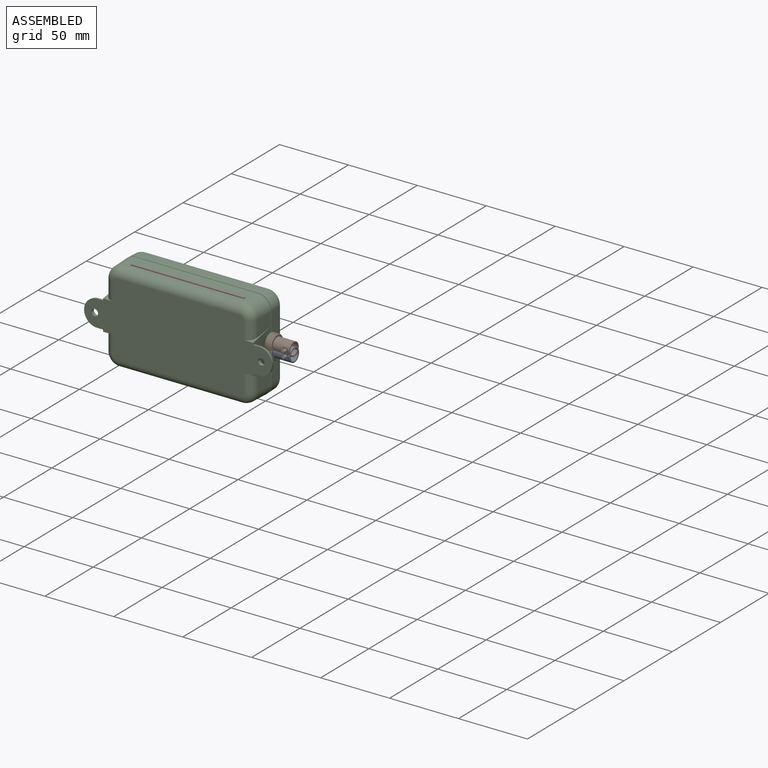
[diagram: assembled view]
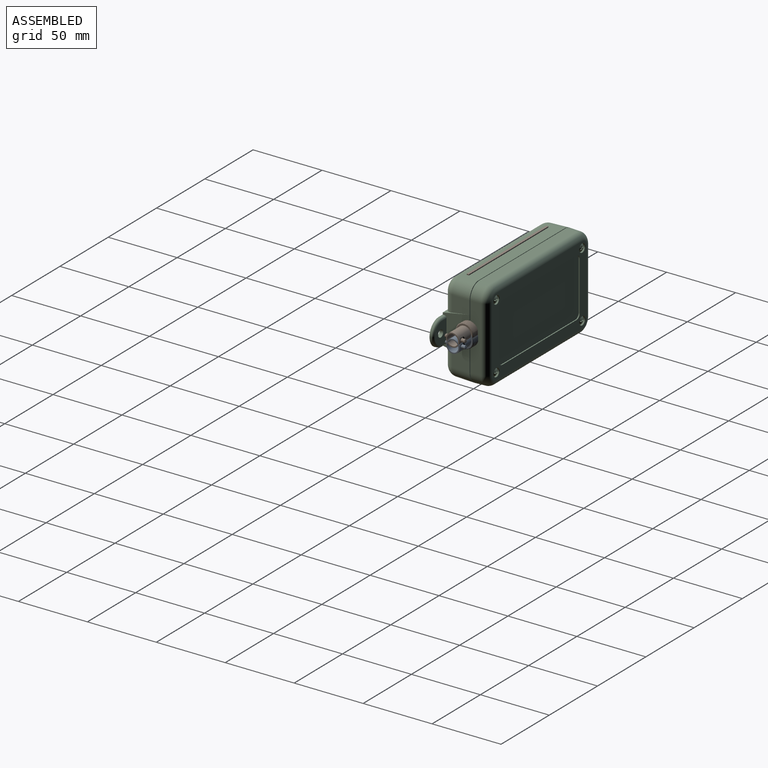
[diagram: assembled view, second angle]
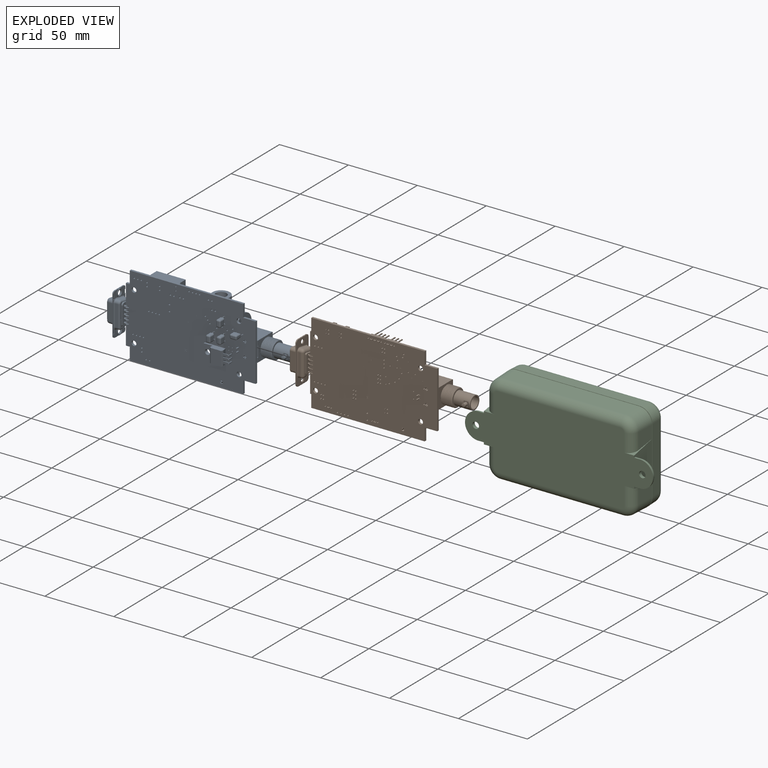
[diagram: exploded view]
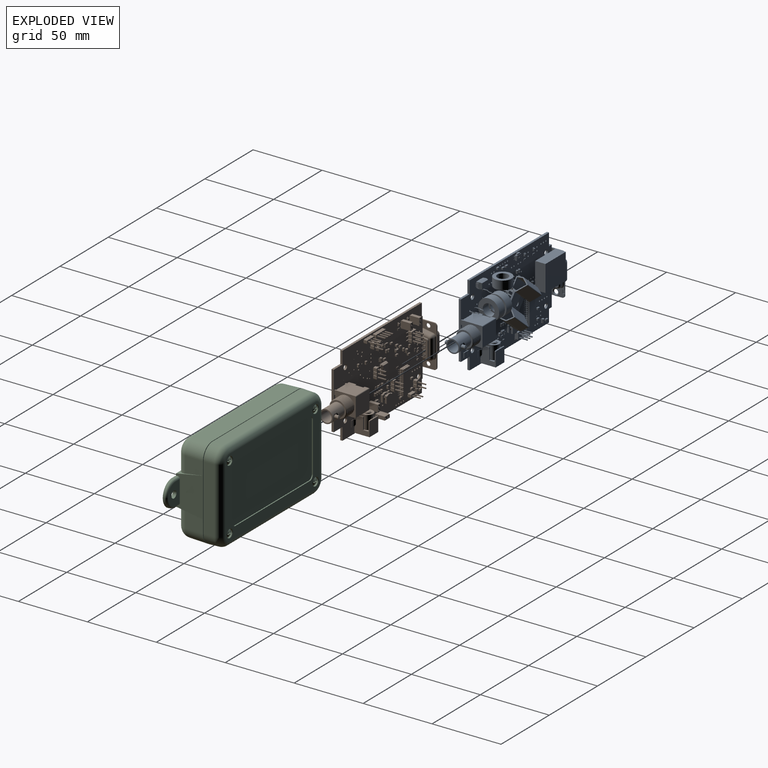
[diagram: exploded view, second angle]
FCSTD DOCUMENT  (FreeCAD 0.21R33694 (Git))
Label: SignalSlinger Box with Wings_RevA_Nov23
License: All rights reserved
LicenseURL: https://en.wikipedia.org/wiki/All_rights_reserved
objects: Part::Feature×164, App::Link×129, App::Part×34, Part::Cylinder×18, Part::Cut×12, PartDesign::CoordinateSystem×2, Sketcher::SketchObject×2, Part::Box×1
note: 199 computed .brp shape members not serialized (recipe doc carries the construction recipe); baked Part::Feature solids carry a one-line shape summary decoded from their .brp

FEATURE [Part::Feature] Part__Feature  label="SCREWS-HL1-BR"
  Placement = pos=(-44.45,12.8162,-23.8125) rot=(0,-1,0;0.010196rad)
  shape: bbox 5.388 x 25.73 x 5.444 mm, 117 faces (baked)
FEATURE [Part::Feature] Part__Feature001  label="SCREWS-HL1-BR001"
  Placement = pos=(-44.45,12.8162,23.8125) rot=(0,1,0;0.370501rad)
  shape: bbox 5.701 x 25.73 x 6.381 mm, 117 faces (baked)
FEATURE [Part::Feature] Part__Feature002  label="SCREWS-HL1-BR002"
  Placement = pos=(44.45,12.8162,23.8125) rot=(0,-1,0;0.034317rad)
  shape: bbox 5.391 x 25.73 x 5.53 mm, 117 faces (baked)
FEATURE [Part::Feature] Part__Feature003  label="SL-42B_SL-42BFMB"
  shape: bbox 137.7 x 19.2 x 66.68 mm, 120 faces (baked)
FEATURE [Part::Feature] Part__Feature004  label="SCREWS-HL1-BR003"
  Placement = pos=(44.45,12.8162,-23.8125) rot=(0,-1,0;0.000892rad)
  shape: bbox 5.388 x 25.73 x 5.409 mm, 117 faces (baked)
FEATURE [Part::Feature] Part__Feature005  label="SL-42C_SL-42C-R"
  Placement = pos=(0,0.4318,0) rot=(0.707107,0,-0.707107;3.14159rad)
  shape: bbox 108 x 14.38 x 66.68 mm, 115 faces (baked)
FEATURE [App::Part] SL_42FMBR_ASSEMBLY  label="SL-42FMBR_ASSEMBLY"
  Group = -> [Part__Feature,Part__Feature001,Part__Feature002,Part__Feature003,Part__Feature004,Part__Feature005]
  Origin = -> Origin
FEATURE [Part::Feature] Part__Feature006  label="SL-42C_SL-42C-R001 TOP"
  Placement = pos=(0,0.4318,0) rot=(0.707107,0,-0.707107;3.14159rad)
  shape: bbox 108 x 14.38 x 66.68 mm, 115 faces (baked)
FEATURE [Part::Feature] Part__Feature007  label="SL-42B_SL-42BFMB001 BOTTOM"
  shape: bbox 137.7 x 19.2 x 66.68 mm, 120 faces (baked)
FEATURE [PartDesign::CoordinateSystem] Local_CS_8a33
  AttacherType = Attacher::AttachEngine3D
  MapMode = 2
  Support = -> [X_Axis001]
FEATURE [Part::Feature] Pcb_8a33
  shape: bbox 92.11 x 59.06 x 1.6 mm, 93 faces (baked)
FEATURE [Sketcher::SketchObject] PCB_Sketch_8a33
  FullyConstrained = false
  sketch-geometry (12):
    g0: LineSegment StartX=48.8324 StartY=-59.885 StartZ=0 EndX=131.078 EndY=-59.885 EndZ=0
    g1: LineSegment StartX=48.01 StartY=-109.898 StartZ=0 EndX=48.8324 EndY=-109.898 EndZ=0
    g2: LineSegment StartX=48.01 StartY=-68.9274 StartZ=0 EndX=48.8324 EndY=-68.9274 EndZ=0
    g3: LineSegment StartX=131.078 StartY=-118.94 StartZ=0 EndX=48.8324 EndY=-118.94 EndZ=0
    g4: LineSegment StartX=131.078 StartY=-109.898 StartZ=0 EndX=140.12 EndY=-109.898 EndZ=0
    g5: LineSegment StartX=131.078 StartY=-118.94 StartZ=0 EndX=131.078 EndY=-109.898 EndZ=0
    g6: LineSegment StartX=48.8324 StartY=-109.898 StartZ=0 EndX=48.8324 EndY=-118.94 EndZ=0
    g7: LineSegment StartX=140.12 StartY=-68.9274 StartZ=0 EndX=140.12 EndY=-109.898 EndZ=0
    g8: LineSegment StartX=48.01 StartY=-68.9274 StartZ=0 EndX=48.01 EndY=-109.898 EndZ=0
    g9: LineSegment StartX=131.078 StartY=-68.9274 StartZ=0 EndX=140.12 EndY=-68.9274 EndZ=0
    g10: LineSegment StartX=48.8324 StartY=-68.9274 StartZ=0 EndX=48.8324 EndY=-59.885 EndZ=0
    g11: LineSegment StartX=131.078 StartY=-59.885 StartZ=0 EndX=131.078 EndY=-68.9274 EndZ=0
  constraints (12):
    c: Coincident(g1,g8)
    c: Coincident(g2,g8)
    c: Coincident(g3,g6)
    c: Coincident(g1,g6)
    c: Coincident(g2,g10)
    c: Coincident(g0,g10)
    c: Coincident(g3,g5)
    c: Coincident(g4,g5)
    c: Coincident(g9,g11)
    c: Coincident(g0,g11)
    c: Coincident(g4,g7)
    c: Coincident(g7,g9)
FEATURE [App::Part] Board_Geoms_8a33
  Group = -> [Pcb_8a33,PCB_Sketch_8a33]
  Origin = -> Origin002
  Placement = pos=(1,0,0) rot=(0,0,1;0rad)
FEATURE [Part::Feature] Shape  label="J104_PinSocket_1x02_P254mm_Vertical_e0fb20a0c432"
  Placement = pos=(61.27,-114.32,0) rot=(0,0,1;3.14159rad)
  shape: bbox 2.54 x 5.08 x 10.1 mm, 72 faces (baked)
FEATURE [Part::Feature] Shape001  label="J302_PinHeader_1x03_P254mm_Vertical_f8f2249646ff"
  Placement = pos=(108.82,-116.6,0) rot=(0,0,-1;1.5708rad)
  shape: bbox 7.62 x 2.54 x 11.54 mm, 76 faces (baked)
FEATURE [Part::Feature] Shape002  label="D106_D_0603_cf70ebe272e2"
  Placement = pos=(54.26,-93.55,0) rot=(0,0,1;0rad)
  shape: bbox 1.6 x 0.87 x 0.66 mm, 39 faces (baked)
FEATURE [Part::Feature] Shape003  label="R104_R_0805_2012Metric_d3d305b3303f"
  Placement = pos=(64.9925,-110.97,0) rot=(0,0,1;0rad)
  shape: bbox 2 x 1.2 x 0.45 mm, 26 faces (baked)
FEATURE [Part::Feature] Shape004  label="C102_C_0805_2012Metric_5d0beb243147"
  Placement = pos=(72.66,-65.56,0) rot=(0,0,1;3.14159rad)
  shape: bbox 2 x 1.25 x 1.25 mm, 28 faces (baked)
FEATURE [Part::Feature] Shape005  label="U202_SOT_23_5_bb819ef3cc58"
  Placement = pos=(76.91,-98.3,0) rot=(0,0,-1;1.5708rad)
  shape: bbox 2.9 x 2.8 x 1.55 mm, 109 faces (baked)
FEATURE [Part::Feature] Shape006  label="D103_LED_0805_2012Metric_5840b99c70ca"
  Placement = pos=(65.185,-114.3,0) rot=(0,0,1;1.5708rad)
  shape: bbox 1.25 x 2 x 1.1 mm, 50 faces (baked)
FEATURE [App::Link] C102_C_0805_2012Metric_5d0beb243147_ln_  label="C108_C_0805_2012Metric_613d7140dbe2"
  LinkPlacement = pos=(91.77,-107.04,0) rot=(0,0,-1;1.5708rad)
  LinkedObject = -> Shape004
  Placement = pos=(91.77,-107.04,0) rot=(0,0,-1;1.5708rad)
FEATURE [Part::Feature] Shape007  label="J203_PinHeader_1x02_P254mm_Vertical_a5194a1c19d5"
  Placement = pos=(57.49,-70.525,0) rot=(0,0,1;3.14159rad)
  shape: bbox 2.54 x 5.08 x 11.54 mm, 52 faces (baked)
FEATURE [App::Link] R104_R_0805_2012Metric_d3d305b3303f_ln_  label="R202_R_0805_2012Metric_ac86a809b649"
  LinkPlacement = pos=(97.92,-81.36,0) rot=(0,0,1;1.5708rad)
  LinkedObject = -> Shape003
  Placement = pos=(97.92,-81.36,0) rot=(0,0,1;1.5708rad)
FEATURE [App::Link] J302_PinHeader_1x03_P254mm_Vertical_f8f2249646ff_ln_  label="J202_PinHeader_1x03_P254mm_Vertical_42764f27bb27"
  LinkPlacement = pos=(80.95,-79.635,0) rot=(0,0,1;3.14159rad)
  LinkedObject = -> Shape001
  Placement = pos=(80.95,-79.635,0) rot=(0,0,1;3.14159rad)
FEATURE [Part::Feature] Shape008  label="L202_L_Bourns_SRN6045TA_e2dbc0c55536"
  Placement = pos=(89.39,-72.43,0) rot=(0,0,1;0rad)
  shape: bbox 6 x 6 x 4.2 mm, 60 faces (baked)
FEATURE [App::Link] D106_D_0603_cf70ebe272e2_ln_  label="D110_D_0603_64503c8d7789"
  LinkPlacement = pos=(54.6,-89.09,0) rot=(0,0,1;0rad)
  LinkedObject = -> Shape002
  Placement = pos=(54.6,-89.09,0) rot=(0,0,1;0rad)
FEATURE [Part::Feature] Shape009  label="D201_SC_59_93de924e6f92"
  Placement = pos=(97.8,-72.87,0) rot=(0,0,-1;1.5708rad)
  shape: bbox 3 x 2.8 x 1.3 mm, 76 faces (baked)
FEATURE [App::Link] R104_R_0805_2012Metric_d3d305b3303f_ln_001  label="R103_R_0805_2012Metric_fd0a355416df"
  LinkPlacement = pos=(94.89,-70.63,0) rot=(0,0,1;1.5708rad)
  LinkedObject = -> Shape003
  Placement = pos=(94.89,-70.63,0) rot=(0,0,1;1.5708rad)
FEATURE [Part::Feature] Shape010  label="D202_D_SMA_3eec599161d4"
  Placement = pos=(112.14,-80.87,0) rot=(0,0,1;3.14159rad)
  shape: bbox 5 x 2.7 x 2.22 mm, 41 faces (baked)
FEATURE [App::Link] D106_D_0603_cf70ebe272e2_ln_001  label="D109_D_0603_70e3b5fca8fa"
  LinkPlacement = pos=(54.62,-83.84,0) rot=(0,0,1;3.14159rad)
  LinkedObject = -> Shape002
  Placement = pos=(54.62,-83.84,0) rot=(0,0,1;3.14159rad)
FEATURE [Part::Feature] Shape011  label="P101_PinHeader_2x03_P254mm_Vertical_SMD_7d792b6334d9"
  Placement = pos=(62.48,-102.61,0) rot=(0,0,1;0rad)
  shape: bbox 7.54 x 7.62 x 9.3 mm, 148 faces (baked)
FEATURE [App::Link] J104_PinSocket_1x02_P254mm_Vertical_e0fb20a0c432_ln_  label="J101_PinSocket_1x02_P254mm_Vertical_95c16a4f768e"
  LinkPlacement = pos=(96.93,-63.27,0) rot=(0,0,-1;1.5708rad)
  LinkedObject = -> Shape
  Placement = pos=(96.93,-63.27,0) rot=(0,0,-1;1.5708rad)
FEATURE [App::Link] C102_C_0805_2012Metric_5d0beb243147_ln_001  label="C301_C_0805_2012Metric_c80059aab7d8"
  LinkPlacement = pos=(116.55,-103.38,0) rot=(0,0,1;1.5708rad)
  LinkedObject = -> Shape004
  Placement = pos=(116.55,-103.38,0) rot=(0,0,1;1.5708rad)
FEATURE [App::Link] C102_C_0805_2012Metric_5d0beb243147_ln_002  label="C105_C_0805_2012Metric_c945071be919"
  LinkPlacement = pos=(85.26,-101.38,0) rot=(0,0,1;1.5708rad)
  LinkedObject = -> Shape004
  Placement = pos=(85.26,-101.38,0) rot=(0,0,1;1.5708rad)
FEATURE [App::Link] C102_C_0805_2012Metric_5d0beb243147_ln_003  label="C101_C_0805_2012Metric_4e319d3910bf"
  LinkPlacement = pos=(61.36,-67.15,0) rot=(0,0,1;3.14159rad)
  LinkedObject = -> Shape004
  Placement = pos=(61.36,-67.15,0) rot=(0,0,1;3.14159rad)
FEATURE [Part::Feature] Shape012  label="Q102_SOT_323_SC_70_5491fd51a8fe"
  Placement = pos=(103.19,-65.81,0) rot=(0,0,1;1.5708rad)
  shape: bbox 2 x 2 x 1.05 mm, 76 faces (baked)
FEATURE [App::Link] C102_C_0805_2012Metric_5d0beb243147_ln_004  label="C203_C_0805_2012Metric_c3b43a5c6661"
  LinkPlacement = pos=(69.72,-96.05,0) rot=(0,0,1;1.5708rad)
  LinkedObject = -> Shape004
  Placement = pos=(69.72,-96.05,0) rot=(0,0,1;1.5708rad)
FEATURE [App::Link] R104_R_0805_2012Metric_d3d305b3303f_ln_002  label="R203_R_0805_2012Metric_4c1790415678"
  LinkPlacement = pos=(93.75,-81.36,0) rot=(0,0,-1;1.5708rad)
  LinkedObject = -> Shape003
  Placement = pos=(93.75,-81.36,0) rot=(0,0,-1;1.5708rad)
FEATURE [App::Link] C102_C_0805_2012Metric_5d0beb243147_ln_005  label="C210_C_0805_2012Metric_0bcf3452c1a6"
  LinkPlacement = pos=(76.76,-101.49,0) rot=(0,0,1;0rad)
  LinkedObject = -> Shape004
  Placement = pos=(76.76,-101.49,0) rot=(0,0,1;0rad)
FEATURE [App::Link] C102_C_0805_2012Metric_5d0beb243147_ln_006  label="C212_C_0805_2012Metric_70d901af5ba9"
  LinkPlacement = pos=(92.61,-77.62,0) rot=(0,0,-1;1.5708rad)
  LinkedObject = -> Shape004
  Placement = pos=(92.61,-77.62,0) rot=(0,0,-1;1.5708rad)
FEATURE [App::Link] J104_PinSocket_1x02_P254mm_Vertical_e0fb20a0c432_ln_001  label="J103_PinSocket_1x02_P254mm_Vertical_01431bca0125"
  LinkPlacement = pos=(103.955,-73.79,0) rot=(0,0,1;3.14159rad)
  LinkedObject = -> Shape
  Placement = pos=(103.955,-73.79,0) rot=(0,0,1;3.14159rad)
FEATURE [App::Link] C102_C_0805_2012Metric_5d0beb243147_ln_007  label="C213_C_0805_2012Metric_506a0b490e6e"
  LinkPlacement = pos=(94.65,-77.63,0) rot=(0,0,1;1.5708rad)
  LinkedObject = -> Shape004
  Placement = pos=(94.65,-77.63,0) rot=(0,0,1;1.5708rad)
FEATURE [App::Link] C102_C_0805_2012Metric_5d0beb243147_ln_008  label="C103_C_0805_2012Metric_f3e0fc643ca0"
  LinkPlacement = pos=(61.18,-74.02,0) rot=(0,0,1;0rad)
  LinkedObject = -> Shape004
  Placement = pos=(61.18,-74.02,0) rot=(0,0,1;0rad)
FEATURE [App::Link] R104_R_0805_2012Metric_d3d305b3303f_ln_003  label="R106_R_0805_2012Metric_e8421abfd801"
  LinkPlacement = pos=(57.26,-90.92,0) rot=(0,0,-1;1.5708rad)
  LinkedObject = -> Shape003
  Placement = pos=(57.26,-90.92,0) rot=(0,0,-1;1.5708rad)
FEATURE [App::Link] C102_C_0805_2012Metric_5d0beb243147_ln_009  label="C216_C_0805_2012Metric_eb15a3b80d64"
  LinkPlacement = pos=(52.46,-63.33,0) rot=(0,0,1;3.14159rad)
  LinkedObject = -> Shape004
  Placement = pos=(52.46,-63.33,0) rot=(0,0,1;3.14159rad)
FEATURE [App::Link] C102_C_0805_2012Metric_5d0beb243147_ln_010  label="C204_C_0805_2012Metric_de374522a3e3"
  LinkPlacement = pos=(122.02,-80.99,0) rot=(0,0,-1;1.5708rad)
  LinkedObject = -> Shape004
  Placement = pos=(122.02,-80.99,0) rot=(0,0,-1;1.5708rad)
FEATURE [App::Link] C102_C_0805_2012Metric_5d0beb243147_ln_011  label="C107_C_0805_2012Metric_9ef04cca81bd"
  LinkPlacement = pos=(82.29,-104.92,0) rot=(0,0,1;3.14159rad)
  LinkedObject = -> Shape004
  Placement = pos=(82.29,-104.92,0) rot=(0,0,1;3.14159rad)
FEATURE [App::Link] C102_C_0805_2012Metric_5d0beb243147_ln_012  label="C211_C_0805_2012Metric_c13e2ea5f76f"
  LinkPlacement = pos=(95.84,-81.39,0) rot=(0,0,-1;1.5708rad)
  LinkedObject = -> Shape004
  Placement = pos=(95.84,-81.39,0) rot=(0,0,-1;1.5708rad)
FEATURE [App::Link] Q102_SOT_323_SC_70_5491fd51a8fe_ln_  label="Q101_SOT_323_SC_70_2f5b735570e1"
  LinkPlacement = pos=(100.41,-66.64,0) rot=(0,0,-1;1.5708rad)
  LinkedObject = -> Shape012
  Placement = pos=(100.41,-66.64,0) rot=(0,0,-1;1.5708rad)
FEATURE [App::Link] D103_LED_0805_2012Metric_5840b99c70ca_ln_  label="D104_LED_0805_2012Metric_df46b3b14558"
  LinkPlacement = pos=(74.525,-114.3,0) rot=(0,0,1;1.5708rad)
  LinkedObject = -> Shape006
  Placement = pos=(74.525,-114.3,0) rot=(0,0,1;1.5708rad)
FEATURE [App::Link] R104_R_0805_2012Metric_d3d305b3303f_ln_004  label="R105_R_0805_2012Metric_6df340218d37"
  LinkPlacement = pos=(74.335,-110.97,0) rot=(0,0,1;0rad)
  LinkedObject = -> Shape003
  Placement = pos=(74.335,-110.97,0) rot=(0,0,1;0rad)
FEATURE [App::Link] C102_C_0805_2012Metric_5d0beb243147_ln_013  label="C205_C_0805_2012Metric_112e2d4ec47d"
  LinkPlacement = pos=(86.04,-77.7,0) rot=(0,0,1;1.5708rad)
  LinkedObject = -> Shape004
  Placement = pos=(86.04,-77.7,0) rot=(0,0,1;1.5708rad)
FEATURE [App::Link] C102_C_0805_2012Metric_5d0beb243147_ln_014  label="C106_C_0805_2012Metric_0f75917eb76d"
  LinkPlacement = pos=(87.42,-101.62,0) rot=(0,0,1;1.5708rad)
  LinkedObject = -> Shape004
  Placement = pos=(87.42,-101.62,0) rot=(0,0,1;1.5708rad)
FEATURE [App::Link] C102_C_0805_2012Metric_5d0beb243147_ln_015  label="R107_C_0805_2012Metric_e4fbbb2b9fe8"
  LinkPlacement = pos=(93.9,-114.27,0) rot=(0,0,1;3.14159rad)
  LinkedObject = -> Shape004
  Placement = pos=(93.9,-114.27,0) rot=(0,0,1;3.14159rad)
FEATURE [App::Link] C102_C_0805_2012Metric_5d0beb243147_ln_016  label="C215_C_0805_2012Metric_054d8b6ca02c"
  LinkPlacement = pos=(99.03,-77.58,0) rot=(0,0,1;1.5708rad)
  LinkedObject = -> Shape004
  Placement = pos=(99.03,-77.58,0) rot=(0,0,1;1.5708rad)
FEATURE [App::Link] C102_C_0805_2012Metric_5d0beb243147_ln_017  label="C202_C_0805_2012Metric_abe73d9142a3"
  LinkPlacement = pos=(64.44,-91.09,0) rot=(0,0,1;3.14159rad)
  LinkedObject = -> Shape004
  Placement = pos=(64.44,-91.09,0) rot=(0,0,1;3.14159rad)
FEATURE [App::Link] C102_C_0805_2012Metric_5d0beb243147_ln_018  label="C207_C_0805_2012Metric_b95810587f54"
  LinkPlacement = pos=(85.16,-74.1,0) rot=(0,0,-1;1.5708rad)
  LinkedObject = -> Shape004
  Placement = pos=(85.16,-74.1,0) rot=(0,0,-1;1.5708rad)
FEATURE [App::Link] C102_C_0805_2012Metric_5d0beb243147_ln_019  label="C209_C_0805_2012Metric_9b933d1e7d2b"
  LinkPlacement = pos=(73.19,-99.39,0) rot=(0,0,1;3.14159rad)
  LinkedObject = -> Shape004
  Placement = pos=(73.19,-99.39,0) rot=(0,0,1;3.14159rad)
FEATURE [Part::Feature] Shape013  label="U204_SOT_23_6_8a43e9cb2c6b"
  Placement = pos=(56.32,-64.13,0) rot=(0,0,1;0rad)
  shape: bbox 2.8 x 2.9 x 1.55 mm, 124 faces (baked)
FEATURE [Part::Feature] Shape014  label="D101_D_SOD_523_1e1a2e386b58"
  Placement = pos=(103.13,-68.41,0) rot=(0,0,1;3.14159rad)
  shape: bbox 1.6 x 0.8 x 0.63 mm, 27 faces (baked)
FEATURE [App::Link] R104_R_0805_2012Metric_d3d305b3303f_ln_005  label="R205_R_0805_2012Metric_04b97ca11282"
  LinkPlacement = pos=(75.54,-86.23,0) rot=(0,0,1;0rad)
  LinkedObject = -> Shape003
  Placement = pos=(75.54,-86.23,0) rot=(0,0,1;0rad)
FEATURE [App::Link] D106_D_0603_cf70ebe272e2_ln_002  label="D112_D_0603_ac08d9516e65"
  LinkPlacement = pos=(54.28,-96.25,0) rot=(0,0,1;0rad)
  LinkedObject = -> Shape002
  Placement = pos=(54.28,-96.25,0) rot=(0,0,1;0rad)
FEATURE [App::Link] J203_PinHeader_1x02_P254mm_Vertical_a5194a1c19d5_ln_  label="J108_PinHeader_1x02_P254mm_Vertical_a73ae97b1979"
  LinkPlacement = pos=(101.89,-112.775,0) rot=(0,0,1;3.14159rad)
  LinkedObject = -> Shape007
  Placement = pos=(101.89,-112.775,0) rot=(0,0,1;3.14159rad)
FEATURE [App::Link] C102_C_0805_2012Metric_5d0beb243147_ln_020  label="C109_C_0805_2012Metric_78342a3b13db"
  LinkPlacement = pos=(89.43,-97.29,0) rot=(0,0,1;0rad)
  LinkedObject = -> Shape004
  Placement = pos=(89.43,-97.29,0) rot=(0,0,1;0rad)
FEATURE [App::Link] C102_C_0805_2012Metric_5d0beb243147_ln_021  label="C201_C_0805_2012Metric_0042794e73cd"
  LinkPlacement = pos=(63.44,-96,0) rot=(0,0,1;1.5708rad)
  LinkedObject = -> Shape004
  Placement = pos=(63.44,-96,0) rot=(0,0,1;1.5708rad)
FEATURE [Part::Feature] Shape015  label="L201_L_Wuerth_MAPI_4020_61733f8ac4bb"
  Placement = pos=(118.215,-81.57,0) rot=(0,0,-1;1.5708rad)
  shape: bbox 4 x 3 x 2 mm, 30 faces (baked)
FEATURE [App::Link] D101_D_SOD_523_1e1a2e386b58_ln_  label="D102_D_SOD_523_e204cd0c56e5"
  LinkPlacement = pos=(96.45,-66.44,0) rot=(0,0,1;3.14159rad)
  LinkedObject = -> Shape014
  Placement = pos=(96.45,-66.44,0) rot=(0,0,1;3.14159rad)
FEATURE [App::Link] U204_SOT_23_6_8a43e9cb2c6b_ln_  label="U103_SOT_23_6_b171f2631caa"
  LinkPlacement = pos=(93.4075,-98.35,0) rot=(0,0,1;0rad)
  LinkedObject = -> Shape013
  Placement = pos=(93.4075,-98.35,0) rot=(0,0,1;0rad)
FEATURE [App::Link] J104_PinSocket_1x02_P254mm_Vertical_e0fb20a0c432_ln_002  label="J106_PinSocket_1x02_P254mm_Vertical_6f23be7986c6"
  LinkPlacement = pos=(70.41,-114.32,0) rot=(0,0,1;3.14159rad)
  LinkedObject = -> Shape
  Placement = pos=(70.41,-114.32,0) rot=(0,0,1;3.14159rad)
FEATURE [Part::Feature] Shape016  label="U101_SOIC_28W_75x179mm_P127mm_284b03256929"
  Placement = pos=(69.42,-75.86,0) rot=(0,0,1;3.14159rad)
  shape: bbox 10.3 x 17.9 x 2.75 mm, 456 faces (baked)
FEATURE [App::Link] D106_D_0603_cf70ebe272e2_ln_003  label="D108_D_0603_f51d6d2241e0"
  LinkPlacement = pos=(54.58,-86.02,0) rot=(0,0,1;3.14159rad)
  LinkedObject = -> Shape002
  Placement = pos=(54.58,-86.02,0) rot=(0,0,1;3.14159rad)
FEATURE [App::Link] R104_R_0805_2012Metric_d3d305b3303f_ln_006  label="R201_R_0805_2012Metric_8797c11ca40d"
  LinkPlacement = pos=(85.31,-80.95,0) rot=(0,0,1;3.14159rad)
  LinkedObject = -> Shape003
  Placement = pos=(85.31,-80.95,0) rot=(0,0,1;3.14159rad)
FEATURE [App::Link] C102_C_0805_2012Metric_5d0beb243147_ln_022  label="C104_C_0805_2012Metric_c8c0bbc80ab7"
  LinkPlacement = pos=(101,-72.12,0) rot=(0,0,-1;1.5708rad)
  LinkedObject = -> Shape004
  Placement = pos=(101,-72.12,0) rot=(0,0,-1;1.5708rad)
FEATURE [App::Link] C102_C_0805_2012Metric_5d0beb243147_ln_023  label="R108_C_0805_2012Metric_0696b06a797e"
  LinkPlacement = pos=(97.43,-114.27,0) rot=(0,0,1;3.14159rad)
  LinkedObject = -> Shape004
  Placement = pos=(97.43,-114.27,0) rot=(0,0,1;3.14159rad)
FEATURE [App::Link] D106_D_0603_cf70ebe272e2_ln_004  label="D111_D_0603_73038b3f9e4f"
  LinkPlacement = pos=(57.7,-96.12,0) rot=(0,0,-1;1.5708rad)
  LinkedObject = -> Shape002
  Placement = pos=(57.7,-96.12,0) rot=(0,0,-1;1.5708rad)
FEATURE [App::Link] U204_SOT_23_6_8a43e9cb2c6b_ln_001  label="U104_SOT_23_6_54e0320a88c4"
  LinkPlacement = pos=(96.12,-106.77,0) rot=(0,0,1;3.14159rad)
  LinkedObject = -> Shape013
  Placement = pos=(96.12,-106.77,0) rot=(0,0,1;3.14159rad)
FEATURE [App::Link] R104_R_0805_2012Metric_d3d305b3303f_ln_007  label="R204_R_0805_2012Metric_b15d3b1814fc"
  LinkPlacement = pos=(77.43,-71.69,0) rot=(0,0,1;3.14159rad)
  LinkedObject = -> Shape003
  Placement = pos=(77.43,-71.69,0) rot=(0,0,1;3.14159rad)
FEATURE [Part::Feature] Shape017  label="U102_MSOP_10_3x3mm_P05mm_8a0ae31cd9ae"
  Placement = pos=(87.51,-105.5,0) rot=(0,0,1;0rad)
  shape: bbox 4.9 x 3 x 0.95 mm, 186 faces (baked)
FEATURE [App::Link] J203_PinHeader_1x02_P254mm_Vertical_a5194a1c19d5_ln_001  label="J204_PinHeader_1x02_P254mm_Vertical_92bc2eefb75e"
  LinkPlacement = pos=(63.175,-63.71,0) rot=(0,0,-1;1.5708rad)
  LinkedObject = -> Shape007
  Placement = pos=(63.175,-63.71,0) rot=(0,0,-1;1.5708rad)
FEATURE [App::Link] D106_D_0603_cf70ebe272e2_ln_005  label="D105_D_0603_337bb9f5e3a7"
  LinkPlacement = pos=(54.24,-90.8,0) rot=(0,0,1;3.14159rad)
  LinkedObject = -> Shape002
  Placement = pos=(54.24,-90.8,0) rot=(0,0,1;3.14159rad)
FEATURE [App::Link] J302_PinHeader_1x03_P254mm_Vertical_f8f2249646ff_ln_001  label="J109_PinHeader_1x03_P254mm_Vertical_f41b6afe2c14"
  LinkPlacement = pos=(98.87,-89.415,0) rot=(0,0,1;0rad)
  LinkedObject = -> Shape001
  Placement = pos=(98.87,-89.415,0) rot=(0,0,1;0rad)
FEATURE [Part::Feature] Shape018  label="C110_C_1210_3225Metric_e0e656bd202c"
  Placement = pos=(95.9,-110.23,0) rot=(0,0,1;3.14159rad)
  shape: bbox 3.2 x 2.5 x 2.5 mm, 28 faces (baked)
FEATURE [App::Link] C102_C_0805_2012Metric_5d0beb243147_ln_024  label="C206_C_0805_2012Metric_22242978f346"
  LinkPlacement = pos=(76.82,-95.15,0) rot=(0,0,1;0rad)
  LinkedObject = -> Shape004
  Placement = pos=(76.82,-95.15,0) rot=(0,0,1;0rad)
FEATURE [App::Link] C102_C_0805_2012Metric_5d0beb243147_ln_025  label="C208_C_0805_2012Metric_2ee73e2c284b"
  LinkPlacement = pos=(91.7,-81.38,0) rot=(0,0,-1;1.5708rad)
  LinkedObject = -> Shape004
  Placement = pos=(91.7,-81.38,0) rot=(0,0,-1;1.5708rad)
FEATURE [Part::Feature] Shape019  label="TP101_PinHeader_1x04_P254mm_Vertical_8315f6af642d"
  Placement = pos=(91.75,-116.68,0) rot=(0,0,1;1.5708rad)
  shape: bbox 10.16 x 2.54 x 11.54 mm, 100 faces (baked)
FEATURE [App::Link] R104_R_0805_2012Metric_d3d305b3303f_ln_008  label="R101_R_0805_2012Metric_a8b5849c0f12"
  LinkPlacement = pos=(100.52,-63.03,0) rot=(0,0,1;3.14159rad)
  LinkedObject = -> Shape003
  Placement = pos=(100.52,-63.03,0) rot=(0,0,1;3.14159rad)
FEATURE [App::Link] C102_C_0805_2012Metric_5d0beb243147_ln_026  label="C214_C_0805_2012Metric_8f9d8f4d73da"
  LinkPlacement = pos=(96.88,-77.57,0) rot=(0,0,1;1.5708rad)
  LinkedObject = -> Shape004
  Placement = pos=(96.88,-77.57,0) rot=(0,0,1;1.5708rad)
FEATURE [Part::Feature] Shape020  label="D107_TO_252_2_8ee42997577c"
  Placement = pos=(91.33,-92.02,0) rot=(0,0,1;3.14159rad)
  shape: bbox 9.9 x 6.5 x 2.32 mm, 80 faces (baked)
FEATURE [App::Link] R104_R_0805_2012Metric_d3d305b3303f_ln_009  label="R102_R_0805_2012Metric_6d8dd1ddaf59"
  LinkPlacement = pos=(97.85,-69.68,0) rot=(0,0,1;0rad)
  LinkedObject = -> Shape003
  Placement = pos=(97.85,-69.68,0) rot=(0,0,1;0rad)
FEATURE [App::Link] C102_C_0805_2012Metric_5d0beb243147_ln_027  label="C112_C_0805_2012Metric_77170a2f8115"
  LinkPlacement = pos=(108.62,-102.23,0) rot=(0,0,1;1.5708rad)
  LinkedObject = -> Shape004
  Placement = pos=(108.62,-102.23,0) rot=(0,0,1;1.5708rad)
FEATURE [App::Link] U202_SOT_23_5_bb819ef3cc58_ln_  label="U201_SOT_23_5_d22fb847d802"
  LinkPlacement = pos=(66.59,-94.01,0) rot=(0,0,1;3.14159rad)
  LinkedObject = -> Shape005
  Placement = pos=(66.59,-94.01,0) rot=(0,0,1;3.14159rad)
FEATURE [Part::Feature] Part__Feature008  label="031-5431-10RFX"
  shape: bbox 9.65 x 9.932 x 20.7 mm, 12 faces (baked)
FEATURE [Part::Feature] Part__Feature009  label="031-5431-10RFX001"
  shape: bbox 8 x 8 x 22 mm, 6 faces (baked)
FEATURE [Part::Feature] Part__Feature010  label="031-5431-10RFX002"
  shape: bbox 2.5 x 2.5 x 23 mm, 4 faces (baked)
FEATURE [Part::Feature] Part__Feature011  label="031-5431-10RFX003"
  shape: bbox 0.89 x 13.12 x 2.564 mm, 8 faces (baked)
FEATURE [Part::Feature] Part__Feature012  label="031-5431-10RFX004"
  shape: bbox 0.89 x 13.12 x 3.564 mm, 8 faces (baked)
FEATURE [Part::Feature] Part__Feature013  label="031-5431-10RFX005"
  shape: bbox 0.6403 x 3.75 x 2 mm, 23 faces (baked)
FEATURE [Part::Feature] Part__Feature014  label="031-5431-10RFX006"
  shape: bbox 0.6403 x 3.75 x 2 mm, 23 faces (baked)
FEATURE [Part::Feature] Part__Feature015  label="031-5431-10RFX007"
  shape: bbox 14.77 x 15.6 x 22.81 mm, 101 faces (baked)
FEATURE [Part::Feature] Part__Feature016  label="031-5431-10RFX008"
  shape: bbox 3.265 x 2.85 x 2.5 mm, 5 faces (baked)
FEATURE [Part::Feature] Part__Feature017  label="031-5431-10RFX009"
  shape: bbox 3.265 x 2.85 x 2.5 mm, 5 faces (baked)
FEATURE [App::Part] _31_5431_10RFX  label="031-5431-10RFX010"
  Group = -> [Part__Feature008,Part__Feature009,Part__Feature010,Part__Feature011,Part__Feature012,Part__Feature013,Part__Feature014,Part__Feature015,Part__Feature016,Part__Feature017]
  Origin = -> Origin005
  Placement = pos=(133.5,-89.2,7.8) rot=(0.57735,-0.57735,-0.57735;2.0944rad)
FEATURE [Part::Feature] Part__Feature018  label="100-09HOUSING"
  shape: bbox 18.58 x 11.9 x 9.678 mm, 103 faces (baked)
FEATURE [Part::Feature] Part__Feature019  label="100-09FEMALE-FRONTSHELL"
  Placement = pos=(0,2.9,0) rot=(0,0,1;3.14159rad)
  shape: bbox 30.81 x 6.201 x 12.55 mm, 54 faces (baked)
FEATURE [Part::Feature] Part__Feature020  label="104-FEMALE-TERMINAL-SHORT"
  Placement = pos=(5.54,4.25,-1.42) rot=(0,1,0;3.14159rad)
  shape: bbox 1.4 x 7.65 x 1.4 mm, 20 faces (baked)
FEATURE [Part::Feature] Part__Feature021  label="104-FEMALE-TERMINAL-SHORT001"
  Placement = pos=(5.54,4.25,-1.42) rot=(0,1,0;3.14159rad)
  shape: bbox 1.416 x 5.451 x 1.33 mm, 31 faces (baked)
FEATURE [App::Part] _04_FEMALE_TERMINAL_SHORT  label="104-FEMALE-TERMINAL-SHORT002"
  Group = -> [Part__Feature020,Part__Feature021]
  Origin = -> Origin006
FEATURE [Part::Feature] Part__Feature022  label="104-FEMALE-TERMINAL-SHORT003"
  Placement = pos=(2.77,4.25,-1.42) rot=(0,1,0;3.14159rad)
  shape: bbox 1.4 x 7.65 x 1.4 mm, 20 faces (baked)
FEATURE [Part::Feature] Part__Feature023  label="104-FEMALE-TERMINAL-SHORT004"
  Placement = pos=(2.77,4.25,-1.42) rot=(0,1,0;3.14159rad)
  shape: bbox 1.416 x 5.451 x 1.33 mm, 31 faces (baked)
FEATURE [App::Part] _04_FEMALE_TERMINAL_SHORT001  label="104-FEMALE-TERMINAL-SHORT005"
  Group = -> [Part__Feature022,Part__Feature023]
  Origin = -> Origin007
FEATURE [Part::Feature] Part__Feature024  label="104-FEMALE-TERMINAL-SHORT006"
  Placement = pos=(0,4.25,-1.42) rot=(0,1,0;3.14159rad)
  shape: bbox 1.4 x 7.65 x 1.4 mm, 20 faces (baked)
FEATURE [Part::Feature] Part__Feature025  label="104-FEMALE-TERMINAL-SHORT007"
  Placement = pos=(0,4.25,-1.42) rot=(0,1,0;3.14159rad)
  shape: bbox 1.416 x 5.451 x 1.33 mm, 31 faces (baked)
FEATURE [App::Part] _04_FEMALE_TERMINAL_SHORT002  label="104-FEMALE-TERMINAL-SHORT008"
  Group = -> [Part__Feature024,Part__Feature025]
  Origin = -> Origin008
FEATURE [Part::Feature] Part__Feature026  label="104-FEMALE-TERMINAL-SHORT009"
  Placement = pos=(-2.77,4.25,-1.42) rot=(0,1,0;3.14159rad)
  shape: bbox 1.4 x 7.65 x 1.4 mm, 20 faces (baked)
FEATURE [Part::Feature] Part__Feature027  label="104-FEMALE-TERMINAL-SHORT010"
  Placement = pos=(-2.77,4.25,-1.42) rot=(0,1,0;3.14159rad)
  shape: bbox 1.416 x 5.451 x 1.33 mm, 31 faces (baked)
FEATURE [App::Part] _04_FEMALE_TERMINAL_SHORT003  label="104-FEMALE-TERMINAL-SHORT011"
  Group = -> [Part__Feature026,Part__Feature027]
  Origin = -> Origin009
FEATURE [Part::Feature] Part__Feature028  label="104-FEMALE-TERMINAL-SHORT012"
  Placement = pos=(-5.54,4.25,-1.42) rot=(0,1,0;3.14159rad)
  shape: bbox 1.4 x 7.65 x 1.4 mm, 20 faces (baked)
FEATURE [Part::Feature] Part__Feature029  label="104-FEMALE-TERMINAL-SHORT013"
  Placement = pos=(-5.54,4.25,-1.42) rot=(0,1,0;3.14159rad)
  shape: bbox 1.416 x 5.451 x 1.33 mm, 31 faces (baked)
FEATURE [App::Part] _04_FEMALE_TERMINAL_SHORT004  label="104-FEMALE-TERMINAL-SHORT014"
  Group = -> [Part__Feature028,Part__Feature029]
  Origin = -> Origin010
FEATURE [Part::Feature] Part__Feature030  label="104-FEMALE-TERMINAL-SHORT015"
  Placement = pos=(4.12,4.25,1.42) rot=(0,0,1;0rad)
  shape: bbox 1.4 x 7.65 x 1.4 mm, 20 faces (baked)
FEATURE [Part::Feature] Part__Feature031  label="104-FEMALE-TERMINAL-SHORT016"
  Placement = pos=(4.12,4.25,1.42) rot=(0,0,1;0rad)
  shape: bbox 1.416 x 5.451 x 1.33 mm, 31 faces (baked)
FEATURE [App::Part] _04_FEMALE_TERMINAL_SHORT005  label="104-FEMALE-TERMINAL-SHORT017"
  Group = -> [Part__Feature030,Part__Feature031]
  Origin = -> Origin011
FEATURE [Part::Feature] Part__Feature032  label="104-FEMALE-TERMINAL-SHORT018"
  Placement = pos=(1.35,4.25,1.42) rot=(0,0,1;0rad)
  shape: bbox 1.4 x 7.65 x 1.4 mm, 20 faces (baked)
FEATURE [Part::Feature] Part__Feature033  label="104-FEMALE-TERMINAL-SHORT019"
  Placement = pos=(1.35,4.25,1.42) rot=(0,0,1;0rad)
  shape: bbox 1.416 x 5.451 x 1.33 mm, 31 faces (baked)
FEATURE [App::Part] _04_FEMALE_TERMINAL_SHORT006  label="104-FEMALE-TERMINAL-SHORT020"
  Group = -> [Part__Feature032,Part__Feature033]
  Origin = -> Origin012
FEATURE [Part::Feature] Part__Feature034  label="104-FEMALE-TERMINAL-SHORT021"
  Placement = pos=(-1.42,4.25,1.42) rot=(0,0,1;0rad)
  shape: bbox 1.4 x 7.65 x 1.4 mm, 20 faces (baked)
FEATURE [Part::Feature] Part__Feature035  label="104-FEMALE-TERMINAL-SHORT022"
  Placement = pos=(-1.42,4.25,1.42) rot=(0,0,1;0rad)
  shape: bbox 1.416 x 5.451 x 1.33 mm, 31 faces (baked)
FEATURE [App::Part] _04_FEMALE_TERMINAL_SHORT007  label="104-FEMALE-TERMINAL-SHORT023"
  Group = -> [Part__Feature034,Part__Feature035]
  Origin = -> Origin013
FEATURE [Part::Feature] Part__Feature036  label="104-FEMALE-TERMINAL-SHORT024"
  Placement = pos=(-4.19,4.25,1.42) rot=(0,0,1;0rad)
  shape: bbox 1.4 x 7.65 x 1.4 mm, 20 faces (baked)
FEATURE [Part::Feature] Part__Feature037  label="104-FEMALE-TERMINAL-SHORT025"
  Placement = pos=(-4.19,4.25,1.42) rot=(0,0,1;0rad)
  shape: bbox 1.416 x 5.451 x 1.33 mm, 31 faces (baked)
FEATURE [App::Part] _04_FEMALE_TERMINAL_SHORT008  label="104-FEMALE-TERMINAL-SHORT026"
  Group = -> [Part__Feature036,Part__Feature037]
  Origin = -> Origin014
FEATURE [Part::Feature] Part__Feature038  label="100-09FEMALE-BACKSHELL5555"
  Placement = pos=(-2.1e-14,5.55,0.1) rot=(0,0,1;3.14159rad)
  shape: bbox 30.81 x 4.512 x 12.55 mm, 86 faces (baked)
FEATURE [Part::Feature] Part__Feature039  label="Amphenol ICC.0001"
  Placement = pos=(2.74813,-0.30304,3.9471) rot=(0,0,1;0rad)
  shape: bbox 0.129 x 0.5736 x 0.0039 mm, 6 faces (baked)
FEATURE [Part::Feature] Part__Feature040  label="Amphenol ICC.0002"
  Placement = pos=(2.74813,-0.30304,3.9471) rot=(0,0,1;0rad)
  shape: bbox 0.105 x 0.52 x 0.0039 mm, 6 faces (baked)
FEATURE [Part::Feature] Part__Feature041  label="Amphenol ICC.0003"
  Placement = pos=(2.74813,-0.30304,3.9471) rot=(0,0,1;0rad)
  shape: bbox 0.453 x 0.5374 x 0.00468 mm, 13 faces (baked)
FEATURE [Part::Feature] Part__Feature042  label="Amphenol ICC.0004"
  Placement = pos=(2.74813,-0.30304,3.9471) rot=(0,0,1;0rad)
  shape: bbox 0.3876 x 0.4254 x 0.00468 mm, 15 faces (baked)
FEATURE [Part::Feature] Part__Feature043  label="Amphenol ICC.0005"
  Placement = pos=(2.74813,-0.30304,3.9471) rot=(0,0,1;0rad)
  shape: bbox 0.3876 x 0.5736 x 0.00468 mm, 15 faces (baked)
FEATURE [Part::Feature] Part__Feature044  label="Amphenol ICC.0006"
  Placement = pos=(2.74813,-0.30304,3.9471) rot=(0,0,1;0rad)
  shape: bbox 0.6247 x 0.4254 x 0.00468 mm, 24 faces (baked)
FEATURE [Part::Feature] Part__Feature045  label="Amphenol ICC.0007"
  Placement = pos=(2.74813,-0.30304,3.9471) rot=(0,0,1;0rad)
  shape: bbox 0.4125 x 0.4383 x 0.00468 mm, 18 faces (baked)
FEATURE [Part::Feature] Part__Feature046  label="Amphenol ICC.0008"
  Placement = pos=(2.74813,-0.30304,3.9471) rot=(0,0,1;0rad)
  shape: bbox 0.5215 x 0.5491 x 0.0039 mm, 13 faces (baked)
FEATURE [Part::Feature] Part__Feature047  label="Amphenol ICC.0009"
  Placement = pos=(2.74813,-0.30304,3.9471) rot=(0,0,1;0rad)
  shape: bbox 0.4276 x 0.4401 x 0.00468 mm, 14 faces (baked)
FEATURE [Part::Feature] Part__Feature048  label="Amphenol ICC.0010"
  Placement = pos=(2.74813,-0.30304,3.9471) rot=(0,0,1;0rad)
  shape: bbox 0.4058 x 0.5771 x 0.00468 mm, 16 faces (baked)
FEATURE [Part::Feature] Part__Feature049  label="Amphenol ICC.0011"
  Placement = pos=(2.74813,-0.30304,3.9471) rot=(0,0,1;0rad)
  shape: bbox 0.453 x 0.5374 x 0.00468 mm, 13 faces (baked)
FEATURE [App::Part] Amphenol_ICC_0001  label="Amphenol ICC.0012"
  Group = -> [Part__Feature039,Part__Feature040,Part__Feature041,Part__Feature042,Part__Feature043,Part__Feature044,Part__Feature045,Part__Feature046,Part__Feature047,Part__Feature048,Part__Feature049]
  Origin = -> Origin015
FEATURE [App::Part] l77sde09s_4  label="l77sde09s-4"
  Group = -> [Part__Feature018,Part__Feature019,_04_FEMALE_TERMINAL_SHORT,_04_FEMALE_TERMINAL_SHORT001,_04_FEMALE_TERMINAL_SHORT002,_04_FEMALE_TERMINAL_SHORT003,_04_FEMALE_TERMINAL_SHORT004,_04_FEMALE_TERMINAL_SHORT005,_04_FEMALE_TERMINAL_SHORT006,_04_FEMALE_TERMINAL_SHORT007,_04_FEMALE_TERMINAL_SHORT008,Part__Feature038,Amphenol_ICC_0001]
  Origin = -> Origin016
  Placement = pos=(39.2,-88.6,-0.5) rot=(0,0,-1;1.5708rad)
FEATURE [App::Part] G17S0900110EU
  Group = -> [l77sde09s_4]
  Origin = -> Origin017
FEATURE [Part::Feature] Part__Feature050  label="CUI_DEVICES_PJ-036AH-SMT-TR"
  shape: bbox 9 x 12.6 x 14.5 mm, 55 faces (baked)
FEATURE [Part::Feature] Part__Feature051  label="CUI_DEVICES_PJ-036AH-SMT-TR001"
  shape: bbox 3.6 x 4.12 x 7.5 mm, 24 faces (baked)
FEATURE [Part::Feature] Part__Feature052  label="CUI_DEVICES_PJ-036AH-SMT-TR002"
  shape: bbox 3.6 x 1.15 x 4.6 mm, 16 faces (baked)
FEATURE [Part::Feature] Part__Feature053  label="CUI_DEVICES_PJ-036AH-SMT-TR003"
  shape: bbox 4.8 x 9 x 3.55 mm, 25 faces (baked)
FEATURE [App::Part] CUI_DEVICES_PJ_036AH_SMT_TR  label="CUI_DEVICES_PJ-036AH-SMT-TR004"
  Group = -> [Part__Feature050,Part__Feature051,Part__Feature052,Part__Feature053]
  Origin = -> Origin020
  Placement = pos=(115.4,-60.5,0.1) rot=(0,0.707107,0.707107;3.14159rad)
FEATURE [App::Part] Top_8a33
  Group = -> [Shape,Shape001,Shape002,Shape003,Shape004,Shape005,Shape006,C102_C_0805_2012Metric_5d0beb243147_ln_,Shape007,R104_R_0805_2012Metric_d3d305b3303f_ln_,J302_PinHeader_1x03_P254mm_Vertical_f8f2249646ff_ln_,Shape008,D106_D_0603_cf70ebe272e2_ln_,Shape009,R104_R_0805_2012Metric_d3d305b3303f_ln_001,Shape010,D106_D_0603_cf70ebe272e2_ln_001,Shape011,J104_PinSocket_1x02_P254mm_Vertical_e0fb20a0c432_ln_,+62 more]
  Origin = -> Origin004
FEATURE [App::Link] J302_PinHeader_1x03_P254mm_Vertical_f8f2249646ff_ln_002  label="J102_PinHeader_1x03_P254mm_Vertical_7ce4cb5ce8ca"
  LinkPlacement = pos=(51.325,-101.26,-1.6) rot=(0.707107,-0.707107,0;3.14159rad)
  LinkedObject = -> Shape001
  Placement = pos=(51.325,-101.26,-1.6) rot=(0.707107,-0.707107,0;3.14159rad)
FEATURE [Part::Feature] Shape021  label="C305_C_Rect_L70mm_W25mm_P500mm_1eca7188c04d"
  Placement = pos=(122.94,-90.54,-1.6) rot=(0.707107,0.707107,0;3.14159rad)
  shape: bbox 2.5 x 7 x 11.9 mm, 22 faces (baked)
FEATURE [App::Link] C305_C_Rect_L70mm_W25mm_P500mm_1eca7188c04d_ln_  label="C303_C_Rect_L70mm_W25mm_P500mm_d162c1294f54"
  LinkPlacement = pos=(105.96,-102.74,-1.6) rot=(1,0,0;3.14159rad)
  LinkedObject = -> Shape021
  Placement = pos=(105.96,-102.74,-1.6) rot=(1,0,0;3.14159rad)
FEATURE [App::Link] TP101_PinHeader_1x04_P254mm_Vertical_8315f6af642d_ln_  label="J105_PinHeader_1x04_P254mm_Vertical_87f22675d3db"
  LinkPlacement = pos=(51.0525,-77.75,-1.6) rot=(0.707107,-0.707107,0;3.14159rad)
  LinkedObject = -> Shape019
  Placement = pos=(51.0525,-77.75,-1.6) rot=(0.707107,-0.707107,0;3.14159rad)
FEATURE [App::Link] C305_C_Rect_L70mm_W25mm_P500mm_1eca7188c04d_ln_001  label="C304_C_Rect_L70mm_W25mm_P500mm_22baea11e609"
  LinkPlacement = pos=(102.82,-94.91,-1.6) rot=(0.707107,0.707107,0;3.14159rad)
  LinkedObject = -> Shape021
  Placement = pos=(102.82,-94.91,-1.6) rot=(0.707107,0.707107,0;3.14159rad)
FEATURE [App::Link] C305_C_Rect_L70mm_W25mm_P500mm_1eca7188c04d_ln_002  label="C302_C_Rect_L70mm_W25mm_P500mm_2c19cb1900ad"
  LinkPlacement = pos=(119.16,-101.95,-1.6) rot=(1,0,0;3.14159rad)
  LinkedObject = -> Shape021
  Placement = pos=(119.16,-101.95,-1.6) rot=(1,0,0;3.14159rad)
FEATURE [App::Link] TP101_PinHeader_1x04_P254mm_Vertical_8315f6af642d_ln_001  label="MOD201_PinHeader_1x04_P254mm_Vertical_7c52942cc280"
  LinkPlacement = pos=(75.3775,-61.99,-1.6) rot=(0.707107,0.707107,0;3.14159rad)
  LinkedObject = -> Shape019
  Placement = pos=(75.3775,-61.99,-1.6) rot=(0.707107,0.707107,0;3.14159rad)
FEATURE [App::Part] Bot_8a33
  Group = -> [J302_PinHeader_1x03_P254mm_Vertical_f8f2249646ff_ln_002,Shape021,C305_C_Rect_L70mm_W25mm_P500mm_1eca7188c04d_ln_,TP101_PinHeader_1x04_P254mm_Vertical_8315f6af642d_ln_,C305_C_Rect_L70mm_W25mm_P500mm_1eca7188c04d_ln_001,C305_C_Rect_L70mm_W25mm_P500mm_1eca7188c04d_ln_002,TP101_PinHeader_1x04_P254mm_Vertical_8315f6af642d_ln_001]
  Origin = -> Origin021
FEATURE [App::Part] Step_Models_8a33
  Group = -> [Top_8a33,Bot_8a33]
  Origin = -> Origin003
FEATURE [App::Part] Board_8a33  label="OLD SignalSlinger PCB OLD"
  Group = -> [Local_CS_8a33,Board_Geoms_8a33,Step_Models_8a33]
  Origin = -> Origin001
  Placement = pos=(-90.2539,-9.03358,-85.2) rot=(1,0,0;4.71239rad)
  expr: .Placement.Base.z = 0
FEATURE [Part::Cylinder] Cylinder  label="RF Hole"
  Angle = 360
  AttacherType = Attacher::AttachEngine3D
  FirstAngle = 0
  Height = 10
  Placement = pos=(47.1461,-0.43358,1e-15) rot=(0.57735,-0.57735,0.57735;4.18879rad)
  Radius = 7
  SecondAngle = 0
FEATURE [Part::Cylinder] Cylinder002  label="Pwr Hole"
  Angle = 360
  AttacherType = Attacher::AttachEngine3D
  FirstAngle = 0
  Height = 10
  Placement = pos=(25.3,-1.7,-35.7) rot=(0,0,1;0rad)
  Radius = 5.5
  SecondAngle = 0
FEATURE [Part::Cylinder] Cylinder003  label="Pipe1 Hole"
  Angle = 360
  AttacherType = Attacher::AttachEngine3D
  FirstAngle = 0
  Height = 30
  Placement = pos=(-24.8,15.4,24.9) rot=(1,0,0;1.5708rad)
  Radius = 1.48
  SecondAngle = 0
FEATURE [Part::Cylinder] Cylinder004  label="Pipe2 Hole"
  Angle = 360
  AttacherType = Attacher::AttachEngine3D
  FirstAngle = 0
  Height = 30
  Placement = pos=(-15.5,15.4,24.9) rot=(1,0,0;1.5708rad)
  Radius = 1.48
  SecondAngle = 0
FEATURE [Part::Cylinder] Cylinder005  label="Pushbutton Hole"
  Angle = 360
  AttacherType = Attacher::AttachEngine3D
  FirstAngle = 0
  Height = 10
  Placement = pos=(56.1,-1.5,-16.6) rot=(0,-1,0;1.5708rad)
  Radius = 3.4
  SecondAngle = 0
FEATURE [Part::Feature] Part__Feature054  label="DB9_connector_mock_up_test001 (Solid)"
  Placement = pos=(-43.5,-23.2,46.8) rot=(-1,0,0;1.5708rad)
  shape: bbox 10.68 x 15.02 x 29.96 mm, 23034 faces, 0 solids (baked)
FEATURE [Part::Feature] Part__Feature054_solid  label="DB9_connector_mock_up_test001 (Solid) (Solid)"
  Placement = pos=(0,0,-0.6) rot=(0,0,1;0rad)
  shape: bbox 10.68 x 15.02 x 29.96 mm, 23034 faces (baked)
FEATURE [Part::Cut] Cut  label="DB9 Cut"
  Base = -> Part__Feature007
  Tool = -> Part__Feature054_solid
FEATURE [Part::Feature] Part__Feature055  label="SL-42B_SL-42BFMB001 BOTTOM001"
  shape: bbox 137.7 x 19.2 x 66.68 mm, 120 faces (baked)
FEATURE [Part::Feature] Part__Feature056  label="SL-42B_SL-42BFMB001 BOTTOM002"
  shape: bbox 137.7 x 19.2 x 66.68 mm, 120 faces (baked)
FEATURE [Part::Feature] Part__Feature057  label="SL-42B_SL-42BFMB001 BOTTOM003"
  shape: bbox 137.7 x 19.2 x 66.68 mm, 120 faces (baked)
FEATURE [Part::Feature] Part__Feature058  label="SL-42B_SL-42BFMB001 BOTTOM004"
  shape: bbox 137.7 x 19.2 x 66.68 mm, 120 faces (baked)
FEATURE [Part::Cylinder] Cylinder006  label="RF Hole001"
  Angle = 360
  AttacherType = Attacher::AttachEngine3D
  FirstAngle = 0
  Height = 10
  Placement = pos=(47.1461,-0.43358,1e-15) rot=(0.57735,-0.57735,0.57735;4.18879rad)
  Radius = 7
  SecondAngle = 0
FEATURE [Part::Cylinder] Cylinder007  label="RF Hole002"
  Angle = 360
  AttacherType = Attacher::AttachEngine3D
  FirstAngle = 0
  Height = 10
  Placement = pos=(47.1461,-0.43358,1e-15) rot=(0.57735,-0.57735,0.57735;4.18879rad)
  Radius = 7
  SecondAngle = 0
FEATURE [Part::Cut] Cut001  label="DB9 BNC Cuts"
  Base = -> Cut
  Tool = -> Cylinder
FEATURE [Part::Cylinder] Cylinder008  label="Pwr Hole001"
  Angle = 360
  AttacherType = Attacher::AttachEngine3D
  FirstAngle = 0
  Height = 10
  Placement = pos=(25.3,-1.7,-35.7) rot=(0,0,1;0rad)
  Radius = 5.5
  SecondAngle = 0
FEATURE [Part::Cylinder] Cylinder009  label="Pwr Hole002"
  Angle = 360
  AttacherType = Attacher::AttachEngine3D
  FirstAngle = 0
  Height = 10
  Placement = pos=(25.3,-1.7,-35.7) rot=(0,0,1;0rad)
  Radius = 5.5
  SecondAngle = 0
FEATURE [Part::Cut] Cut002  label="DB9 BNC PWR Cuts Bottom"
  Base = -> Cut001
  Tool = -> Cylinder002
FEATURE [Part::Cylinder] Cylinder010  label="Pipe1 Hole001"
  Angle = 360
  AttacherType = Attacher::AttachEngine3D
  FirstAngle = 0
  Height = 30
  Placement = pos=(-25.8,15.4,24.9) rot=(1,0,0;1.5708rad)
  Radius = 1.5
  SecondAngle = 0
FEATURE [Part::Cylinder] Cylinder011  label="Pipe1 Hole002"
  Angle = 360
  AttacherType = Attacher::AttachEngine3D
  FirstAngle = 0
  Height = 30
  Placement = pos=(-25.8,15.4,24.9) rot=(1,0,0;1.5708rad)
  Radius = 1.5
  SecondAngle = 0
FEATURE [Part::Cylinder] Cylinder012  label="Pipe2 Hole001"
  Angle = 360
  AttacherType = Attacher::AttachEngine3D
  FirstAngle = 0
  Height = 30
  Placement = pos=(-16.4,15.4,24.9) rot=(1,0,0;1.5708rad)
  Radius = 1.5
  SecondAngle = 0
FEATURE [Part::Cylinder] Cylinder013  label="Pipe2 Hole002"
  Angle = 360
  AttacherType = Attacher::AttachEngine3D
  FirstAngle = 0
  Height = 30
  Placement = pos=(-16.4,15.4,24.9) rot=(1,0,0;1.5708rad)
  Radius = 1.5
  SecondAngle = 0
FEATURE [Part::Feature] Part__Feature059  label="SL-42C_SL-42C-R001 TOP001"
  Placement = pos=(0,0.4318,0) rot=(0.707107,0,-0.707107;3.14159rad)
  shape: bbox 108 x 14.38 x 66.68 mm, 115 faces (baked)
FEATURE [Part::Feature] Part__Feature060  label="SL-42C_SL-42C-R001 TOP002"
  Placement = pos=(0,0.4318,0) rot=(0.707107,0,-0.707107;3.14159rad)
  shape: bbox 108 x 14.38 x 66.68 mm, 115 faces (baked)
FEATURE [Part::Feature] Part__Feature061  label="SL-42C_SL-42C-R001 TOP003"
  Placement = pos=(0,0.4318,0) rot=(0.707107,0,-0.707107;3.14159rad)
  shape: bbox 108 x 14.38 x 66.68 mm, 115 faces (baked)
FEATURE [Part::Feature] Part__Feature062  label="SL-42C_SL-42C-R001 TOP004"
  Placement = pos=(0,0.4318,0) rot=(0.707107,0,-0.707107;3.14159rad)
  shape: bbox 108 x 14.38 x 66.68 mm, 115 faces (baked)
FEATURE [Part::Cut] Cut003  label="Pipe1 Cut"
  Base = -> Part__Feature006
  Tool = -> Cylinder003
FEATURE [Part::Cut] Cut004  label="Pipe Cuts"
  Base = -> Cut003
  Tool = -> Cylinder004
FEATURE [Part::Cut] Cut005  label="Pipes PWR Cuts"
  Base = -> Cut004
  Tool = -> Cylinder008
FEATURE [Part::Cut] Cut006  label="Pipes PWR BNC Cuts Top"
  Base = -> Cut005
  Tool = -> Cylinder
FEATURE [Part::Cylinder] Cylinder014  label="Pushbutton Hole001"
  Angle = 360
  AttacherType = Attacher::AttachEngine3D
  FirstAngle = 0
  Height = 10
  Placement = pos=(56.1,5.2,-14.7) rot=(0,-1,0;1.5708rad)
  Radius = 3.4
  SecondAngle = 0
FEATURE [Part::Cylinder] Cylinder015  label="RF Hole003"
  Angle = 360
  AttacherType = Attacher::AttachEngine3D
  FirstAngle = 0
  Height = 10
  Placement = pos=(47.1461,-0.43358,1e-15) rot=(0.57735,-0.57735,0.57735;4.18879rad)
  Radius = 7
  SecondAngle = 0
FEATURE [Part::Cylinder] Cylinder016  label="Pipe1 Hole003"
  Angle = 360
  AttacherType = Attacher::AttachEngine3D
  FirstAngle = 0
  Height = 30
  Placement = pos=(-25,15.4,24.9) rot=(1,0,0;1.5708rad)
  Radius = 1.5
  SecondAngle = 0
FEATURE [Part::Cylinder] Cylinder017  label="Pipe2 Hole003"
  Angle = 360
  AttacherType = Attacher::AttachEngine3D
  FirstAngle = 0
  Height = 30
  Placement = pos=(-16.4,15.4,24.9) rot=(1,0,0;1.5708rad)
  Radius = 1.5
  SecondAngle = 0
FEATURE [Part::Cylinder] Cylinder018  label="Pwr Hole003"
  Angle = 360
  AttacherType = Attacher::AttachEngine3D
  FirstAngle = 0
  Height = 10
  Placement = pos=(25.2,-1.7,-35.7) rot=(0,0,1;0rad)
  Radius = 5.5
  SecondAngle = 0
FEATURE [Part::Feature] Part__Feature063  label="SL-42C_SL-42C-R001 TOP005"
  Placement = pos=(0,0.4318,0) rot=(0.707107,0,-0.707107;3.14159rad)
  shape: bbox 108 x 14.38 x 66.68 mm, 115 faces (baked)
FEATURE [Part::Cut] Cut007  label="Pipe1 Cut001"
  Base = -> Part__Feature063
  Tool = -> Cylinder016
FEATURE [Part::Cut] Cut008  label="Pipe Cuts001"
  Base = -> Cut007
  Tool = -> Cylinder017
FEATURE [Part::Cut] Cut009  label="Pipes PWR Cuts001"
  Base = -> Cut008
  Tool = -> Cylinder018
FEATURE [Part::Cut] Cut010  label="Pipes PWR BNC Cuts Top Copy"
  Base = -> Cut009
  Tool = -> Cylinder015
FEATURE [Part::Cut] Cut011  label="Pushbutton Pipes PWR BNC Cuts Top"
  Base = -> Cut010
  Tool = -> Cylinder014
FEATURE [Part::Box] Box  label="LiPo Charger"
  AttacherType = Attacher::AttachEngine3D
  Height = 7.5
  Length = 21
  Placement = pos=(55.5,-113.3,9.3) rot=(0,0,1;0rad)
  Width = 19
FEATURE [App::Link] C102_C_0805_2012Metric_5d0beb243147_ln_028  label="C108_C_0805_2012Metric_613d7140dbe003"
  LinkPlacement = pos=(96.45,-106.29,0) rot=(0,0,-1;1.5708rad)
  LinkedObject = -> Shape025
  Placement = pos=(96.45,-106.29,0) rot=(0,0,-1;1.5708rad)
FEATURE [App::Link] C102_C_0805_2012Metric_5d0beb243147_ln_029  label="C301_C_0805_2012Metric_c80059aab7d009"
  LinkPlacement = pos=(109.49,-98.7,0) rot=(0,0,1;1.5708rad)
  LinkedObject = -> Shape025
  Placement = pos=(109.49,-98.7,0) rot=(0,0,1;1.5708rad)
FEATURE [App::Link] C102_C_0805_2012Metric_5d0beb243147_ln_030  label="C105_C_0805_2012Metric_c945071be920"
  LinkPlacement = pos=(89.94,-100.63,0) rot=(0,0,1;1.5708rad)
  LinkedObject = -> Shape025
  Placement = pos=(89.94,-100.63,0) rot=(0,0,1;1.5708rad)
FEATURE [App::Link] C102_C_0805_2012Metric_5d0beb243147_ln_031  label="C101_C_0805_2012Metric_4e319d3910bf001"
  LinkPlacement = pos=(61.36,-67.15,0) rot=(0,0,1;3.14159rad)
  LinkedObject = -> Shape025
  Placement = pos=(61.36,-67.15,0) rot=(0,0,1;3.14159rad)
FEATURE [App::Link] C102_C_0805_2012Metric_5d0beb243147_ln_032  label="C203_C_0805_2012Metric_c3b43a5c6662"
  LinkPlacement = pos=(71.42,-93.17,0) rot=(0,0,1;3.14159rad)
  LinkedObject = -> Shape025
  Placement = pos=(71.42,-93.17,0) rot=(0,0,1;3.14159rad)
FEATURE [App::Link] C102_C_0805_2012Metric_5d0beb243147_ln_033  label="C210_C_0805_2012Metric_0bcf3452c1a007"
  LinkPlacement = pos=(82.76,-106.18,0) rot=(0,0,1;1.5708rad)
  LinkedObject = -> Shape025
  Placement = pos=(82.76,-106.18,0) rot=(0,0,1;1.5708rad)
FEATURE [App::Link] C102_C_0805_2012Metric_5d0beb243147_ln_034  label="C212_C_0805_2012Metric_70d901af5ba010"
  LinkPlacement = pos=(92.61,-77.62,0) rot=(0,0,-1;1.5708rad)
  LinkedObject = -> Shape025
  Placement = pos=(92.61,-77.62,0) rot=(0,0,-1;1.5708rad)
FEATURE [App::Link] C102_C_0805_2012Metric_5d0beb243147_ln_035  label="C213_C_0805_2012Metric_506a0b490e6e001"
  LinkPlacement = pos=(94.65,-77.63,0) rot=(0,0,1;1.5708rad)
  LinkedObject = -> Shape025
  Placement = pos=(94.65,-77.63,0) rot=(0,0,1;1.5708rad)
FEATURE [App::Link] C102_C_0805_2012Metric_5d0beb243147_ln_036  label="C103_C_0805_2012Metric_f3e0fc643ca001"
  LinkPlacement = pos=(61.18,-74.02,0) rot=(0,0,1;0rad)
  LinkedObject = -> Shape025
  Placement = pos=(61.18,-74.02,0) rot=(0,0,1;0rad)
FEATURE [App::Link] C102_C_0805_2012Metric_5d0beb243147_ln_037  label="C216_C_0805_2012Metric_eb15a3b80d065"
  LinkPlacement = pos=(52.46,-63.33,0) rot=(0,0,1;3.14159rad)
  LinkedObject = -> Shape025
  Placement = pos=(52.46,-63.33,0) rot=(0,0,1;3.14159rad)
FEATURE [App::Link] C102_C_0805_2012Metric_5d0beb243147_ln_038  label="C204_C_0805_2012Metric_de374522a3e004"
  LinkPlacement = pos=(133.98,-75.45,0) rot=(0,0,1;3.14159rad)
  LinkedObject = -> Shape025
  Placement = pos=(133.98,-75.45,0) rot=(0,0,1;3.14159rad)
FEATURE [App::Link] C102_C_0805_2012Metric_5d0beb243147_ln_039  label="C107_C_0805_2012Metric_9ef04cca81bd001"
  LinkPlacement = pos=(86.97,-104.17,0) rot=(0,0,1;3.14159rad)
  LinkedObject = -> Shape025
  Placement = pos=(86.97,-104.17,0) rot=(0,0,1;3.14159rad)
FEATURE [App::Link] C102_C_0805_2012Metric_5d0beb243147_ln_040  label="C211_C_0805_2012Metric_c13e2ea5f76f001"
  LinkPlacement = pos=(95.84,-81.39,0) rot=(0,0,-1;1.5708rad)
  LinkedObject = -> Shape025
  Placement = pos=(95.84,-81.39,0) rot=(0,0,-1;1.5708rad)
FEATURE [App::Link] C102_C_0805_2012Metric_5d0beb243147_ln_041  label="C205_C_0805_2012Metric_112e2d4ec47d001"
  LinkPlacement = pos=(86.04,-77.7,0) rot=(0,0,1;1.5708rad)
  LinkedObject = -> Shape025
  Placement = pos=(86.04,-77.7,0) rot=(0,0,1;1.5708rad)
FEATURE [App::Link] C102_C_0805_2012Metric_5d0beb243147_ln_042  label="C106_C_0805_2012Metric_0f75917eb76d001"
  LinkPlacement = pos=(92.1,-100.87,0) rot=(0,0,1;1.5708rad)
  LinkedObject = -> Shape025
  Placement = pos=(92.1,-100.87,0) rot=(0,0,1;1.5708rad)
FEATURE [App::Link] C102_C_0805_2012Metric_5d0beb243147_ln_043  label="R107_C_0805_2012Metric_e4fbbb2b9fe009"
  LinkPlacement = pos=(93.9,-114.27,0) rot=(0,0,1;3.14159rad)
  LinkedObject = -> Shape025
  Placement = pos=(93.9,-114.27,0) rot=(0,0,1;3.14159rad)
FEATURE [App::Link] C102_C_0805_2012Metric_5d0beb243147_ln_044  label="C215_C_0805_2012Metric_054d8b6ca02c001"
  LinkPlacement = pos=(99.03,-77.58,0) rot=(0,0,1;1.5708rad)
  LinkedObject = -> Shape025
  Placement = pos=(99.03,-77.58,0) rot=(0,0,1;1.5708rad)
FEATURE [App::Link] C102_C_0805_2012Metric_5d0beb243147_ln_045  label="C202_C_0805_2012Metric_abe73d9142a004"
  LinkPlacement = pos=(64.69,-89.88,0) rot=(0,0,1;3.14159rad)
  LinkedObject = -> Shape025
  Placement = pos=(64.69,-89.88,0) rot=(0,0,1;3.14159rad)
FEATURE [App::Link] C102_C_0805_2012Metric_5d0beb243147_ln_046  label="C207_C_0805_2012Metric_b95810587f055"
  LinkPlacement = pos=(85.16,-74.1,0) rot=(0,0,-1;1.5708rad)
  LinkedObject = -> Shape025
  Placement = pos=(85.16,-74.1,0) rot=(0,0,-1;1.5708rad)
FEATURE [App::Link] C102_C_0805_2012Metric_5d0beb243147_ln_047  label="C209_C_0805_2012Metric_9b933d1e7d2b001"
  LinkPlacement = pos=(80.57,-106.15,0) rot=(0,0,-1;1.5708rad)
  LinkedObject = -> Shape025
  Placement = pos=(80.57,-106.15,0) rot=(0,0,-1;1.5708rad)
FEATURE [App::Link] C102_C_0805_2012Metric_5d0beb243147_ln_048  label="C113_C_0805_2012Metric_d622d981265d"
  LinkPlacement = pos=(126.22,-80.52,0) rot=(0,0,1;0rad)
  LinkedObject = -> Shape025
  Placement = pos=(126.22,-80.52,0) rot=(0,0,1;0rad)
FEATURE [App::Link] C102_C_0805_2012Metric_5d0beb243147_ln_049  label="C114_C_0805_2012Metric_c3573cad36bc"
  LinkPlacement = pos=(119.36,-78.77,0) rot=(0,0,1;3.14159rad)
  LinkedObject = -> Shape025
  Placement = pos=(119.36,-78.77,0) rot=(0,0,1;3.14159rad)
FEATURE [App::Link] C102_C_0805_2012Metric_5d0beb243147_ln_050  label="C109_C_0805_2012Metric_78342a3b13db001"
  LinkPlacement = pos=(94.11,-96.54,0) rot=(0,0,1;0rad)
  LinkedObject = -> Shape025
  Placement = pos=(94.11,-96.54,0) rot=(0,0,1;0rad)
FEATURE [App::Link] C102_C_0805_2012Metric_5d0beb243147_ln_051  label="C201_C_0805_2012Metric_0042794e73cd001"
  LinkPlacement = pos=(62.78,-93.46,0) rot=(0,0,1;0rad)
  LinkedObject = -> Shape025
  Placement = pos=(62.78,-93.46,0) rot=(0,0,1;0rad)
FEATURE [App::Link] C102_C_0805_2012Metric_5d0beb243147_ln_052  label="C104_C_0805_2012Metric_c8c0bbc80ab008"
  LinkPlacement = pos=(101,-72.12,0) rot=(0,0,-1;1.5708rad)
  LinkedObject = -> Shape025
  Placement = pos=(101,-72.12,0) rot=(0,0,-1;1.5708rad)
FEATURE [App::Link] C102_C_0805_2012Metric_5d0beb243147_ln_053  label="R108_C_0805_2012Metric_0696b06a797e001"
  LinkPlacement = pos=(97.43,-114.27,0) rot=(0,0,1;3.14159rad)
  LinkedObject = -> Shape025
  Placement = pos=(97.43,-114.27,0) rot=(0,0,1;3.14159rad)
FEATURE [App::Link] C102_C_0805_2012Metric_5d0beb243147_ln_054  label="C206_C_0805_2012Metric_22242978f347"
  LinkPlacement = pos=(82.56,-98.06,0) rot=(0,0,-1;1.5708rad)
  LinkedObject = -> Shape025
  Placement = pos=(82.56,-98.06,0) rot=(0,0,-1;1.5708rad)
FEATURE [App::Link] C102_C_0805_2012Metric_5d0beb243147_ln_055  label="C208_C_0805_2012Metric_2ee73e2c284b001"
  LinkPlacement = pos=(91.7,-81.38,0) rot=(0,0,-1;1.5708rad)
  LinkedObject = -> Shape025
  Placement = pos=(91.7,-81.38,0) rot=(0,0,-1;1.5708rad)
FEATURE [App::Link] C102_C_0805_2012Metric_5d0beb243147_ln_056  label="C214_C_0805_2012Metric_8f9d8f4d73da001"
  LinkPlacement = pos=(96.88,-77.57,0) rot=(0,0,1;1.5708rad)
  LinkedObject = -> Shape025
  Placement = pos=(96.88,-77.57,0) rot=(0,0,1;1.5708rad)
FEATURE [App::Link] C102_C_0805_2012Metric_5d0beb243147_ln_057  label="C112_C_0805_2012Metric_77170a2f8116"
  LinkPlacement = pos=(102.82,-116.33,0) rot=(0,0,1;0rad)
  LinkedObject = -> Shape025
  Placement = pos=(102.82,-116.33,0) rot=(0,0,1;0rad)
FEATURE [App::Link] C305_CCR_SICR_5_08X7_62_L5_08H7_62T3_18S5_08LL7F0_055_1eca7188c04d_ln_  label="C303_CCR_SICR_5.08X7.62_L5.08H7.62T3.18S5.08LL7F0.055_d162c1294f54"
  LinkPlacement = pos=(119.08,-107.29,-3.6) rot=(0.57735,0.57735,-0.57735;4.18879rad)
  LinkedObject = -> CCR_SICR_5_08X7_62_L5_08H7_62T3_18S5_08LL7F0_055
  Placement = pos=(119.08,-107.29,-3.6) rot=(0.57735,0.57735,-0.57735;4.18879rad)
FEATURE [App::Link] C305_CCR_SICR_5_08X7_62_L5_08H7_62T3_18S5_08LL7F0_055_1eca7188c04d_ln_001  label="C304_CCR_SICR_5.08X7.62_L5.08H7.62T3.18S5.08LL7F0.055_22baea11e609"
  LinkPlacement = pos=(116.16,-91.11,-3.6) rot=(-0.57735,0.57735,-0.57735;2.0944rad)
  LinkedObject = -> CCR_SICR_5_08X7_62_L5_08H7_62T3_18S5_08LL7F0_055
  Placement = pos=(116.16,-91.11,-3.6) rot=(-0.57735,0.57735,-0.57735;2.0944rad)
FEATURE [App::Link] C305_CCR_SICR_5_08X7_62_L5_08H7_62T3_18S5_08LL7F0_055_1eca7188c04d_ln_002  label="C302_CCR_SICR_5.08X7.62_L5.08H7.62T3.18S5.08LL7F0.055_2c19cb1900ad"
  LinkPlacement = pos=(111.65,-95.25,-3.6) rot=(0.57735,0.57735,-0.57735;4.18879rad)
  LinkedObject = -> CCR_SICR_5_08X7_62_L5_08H7_62T3_18S5_08LL7F0_055
  Placement = pos=(111.65,-95.25,-3.6) rot=(0.57735,0.57735,-0.57735;4.18879rad)
FEATURE [App::Link] D103_LED_0805_2012Metric_5840b99c70ca_ln_001  label="D104_LED_0805_2012Metric_df46b3b14559"
  LinkPlacement = pos=(74.525,-114.3,0) rot=(0,0,1;1.5708rad)
  LinkedObject = -> Shape028
  Placement = pos=(74.525,-114.3,0) rot=(0,0,1;1.5708rad)
FEATURE [App::Link] D106_D_0603_cf70ebe272e2_ln_006  label="D110_D_0603_64503c8d7790"
  LinkPlacement = pos=(54.6,-89.09,0) rot=(0,0,1;0rad)
  LinkedObject = -> Shape023
  Placement = pos=(54.6,-89.09,0) rot=(0,0,1;0rad)
FEATURE [App::Link] D106_D_0603_cf70ebe272e2_ln_007  label="D109_D_0603_70e3b5fca8fa001"
  LinkPlacement = pos=(54.62,-83.84,0) rot=(0,0,1;3.14159rad)
  LinkedObject = -> Shape023
  Placement = pos=(54.62,-83.84,0) rot=(0,0,1;3.14159rad)
FEATURE [App::Link] D106_D_0603_cf70ebe272e2_ln_008  label="D112_D_0603_ac08d9516e066"
  LinkPlacement = pos=(54.28,-96.25,0) rot=(0,0,1;0rad)
  LinkedObject = -> Shape023
  Placement = pos=(54.28,-96.25,0) rot=(0,0,1;0rad)
FEATURE [App::Link] D106_D_0603_cf70ebe272e2_ln_009  label="D108_D_0603_f51d6d2241e001"
  LinkPlacement = pos=(54.58,-86.02,0) rot=(0,0,1;3.14159rad)
  LinkedObject = -> Shape023
  Placement = pos=(54.58,-86.02,0) rot=(0,0,1;3.14159rad)
FEATURE [App::Link] D106_D_0603_cf70ebe272e2_ln_010  label="D111_D_0603_73038b3f9e4f001"
  LinkPlacement = pos=(57.7,-96.12,0) rot=(0,0,-1;1.5708rad)
  LinkedObject = -> Shape023
  Placement = pos=(57.7,-96.12,0) rot=(0,0,-1;1.5708rad)
FEATURE [App::Link] D106_D_0603_cf70ebe272e2_ln_011  label="D105_D_0603_337bb9f5e3a008"
  LinkPlacement = pos=(54.24,-90.8,0) rot=(0,0,1;3.14159rad)
  LinkedObject = -> Shape023
  Placement = pos=(54.24,-90.8,0) rot=(0,0,1;3.14159rad)
FEATURE [App::Link] D113_D_SOD_523_b41e5e1e5ce4_ln_  label="D101_D_SOD_523_1e1a2e386b059"
  LinkPlacement = pos=(102.12,-69.54,0) rot=(0,0,1;0rad)
  LinkedObject = -> Shape035
  Placement = pos=(102.12,-69.54,0) rot=(0,0,1;0rad)
FEATURE [App::Link] D113_D_SOD_523_b41e5e1e5ce4_ln_001  label="D114_D_SOD_523_fcde07733cfe"
  LinkPlacement = pos=(120.1,-82.71,0) rot=(0,0,-1;1.5708rad)
  LinkedObject = -> Shape035
  Placement = pos=(120.1,-82.71,0) rot=(0,0,-1;1.5708rad)
FEATURE [App::Link] D113_D_SOD_523_b41e5e1e5ce4_ln_002  label="D102_D_SOD_523_e204cd0c56e006"
  LinkPlacement = pos=(96.44,-66.83,0) rot=(0,0,1;3.14159rad)
  LinkedObject = -> Shape035
  Placement = pos=(96.44,-66.83,0) rot=(0,0,1;3.14159rad)
FEATURE [App::Link] J104_PinSocket_1x02_P254mm_Vertical_e0fb20a0c432_ln_003  label="J101_PinSocket_1x02_P254mm_Vertical_95c16a4f768e001"
  LinkPlacement = pos=(80.75,-110.685,0) rot=(0,0,-1;1.5708rad)
  LinkedObject = -> Shape022
  Placement = pos=(80.75,-110.685,0) rot=(0,0,-1;1.5708rad)
FEATURE [App::Link] J104_PinSocket_1x02_P254mm_Vertical_e0fb20a0c432_ln_004  label="J103_PinSocket_1x02_P254mm_Vertical_01431bca0126"
  LinkPlacement = pos=(87.6,-110.825,0) rot=(0,0,-1;1.5708rad)
  LinkedObject = -> Shape022
  Placement = pos=(87.6,-110.825,0) rot=(0,0,-1;1.5708rad)
FEATURE [App::Link] J104_PinSocket_1x02_P254mm_Vertical_e0fb20a0c432_ln_005  label="J106_PinSocket_1x02_P254mm_Vertical_6f23be7986c007"
  LinkPlacement = pos=(70.41,-114.32,0) rot=(0,0,1;3.14159rad)
  LinkedObject = -> Shape022
  Placement = pos=(70.41,-114.32,0) rot=(0,0,1;3.14159rad)
FEATURE [App::Link] J203_PinHeader_1x02_P254mm_Vertical_a5194a1c19d5_ln_002  label="J204_PinHeader_1x02_P254mm_Vertical_92bc2eefb75e001"
  LinkPlacement = pos=(63.175,-63.71,0) rot=(0,0,-1;1.5708rad)
  LinkedObject = -> Shape029
  Placement = pos=(63.175,-63.71,0) rot=(0,0,-1;1.5708rad)
FEATURE [App::Link] L301_Tube_c66d74fa06e7_ln_  label="L302_Tube_5e2156dae63e"
  LinkPlacement = pos=(118.43,-99.39,9.1) rot=(0.707107,0,0.707107;3.14159rad)
  LinkedObject = -> Shape041
  Placement = pos=(118.43,-99.39,9.1) rot=(0.707107,0,0.707107;3.14159rad)
FEATURE [PartDesign::CoordinateSystem] Local_CS_8a034
  AttacherType = Attacher::AttachEngine3D
  MapMode = 2
  Support = -> [X_Axis023]
FEATURE [Sketcher::SketchObject] PCB_Sketch_8a034
  FullyConstrained = false
  sketch-geometry (12):
    g0: LineSegment StartX=48.8324 StartY=-59.885 StartZ=0 EndX=131.078 EndY=-59.885 EndZ=0
    g1: LineSegment StartX=46 StartY=-109.898 StartZ=0 EndX=48.8324 EndY=-109.898 EndZ=0
    g2: LineSegment StartX=46 StartY=-68.9274 StartZ=0 EndX=48.8324 EndY=-68.9274 EndZ=0
    g3: LineSegment StartX=131.078 StartY=-118.94 StartZ=0 EndX=48.8324 EndY=-118.94 EndZ=0
    g4: LineSegment StartX=131.078 StartY=-109.898 StartZ=0 EndX=140.12 EndY=-109.898 EndZ=0
    g5: LineSegment StartX=131.078 StartY=-118.94 StartZ=0 EndX=131.078 EndY=-109.898 EndZ=0
    g6: LineSegment StartX=48.8324 StartY=-109.898 StartZ=0 EndX=48.8324 EndY=-118.94 EndZ=0
    g7: LineSegment StartX=140.12 StartY=-68.9274 StartZ=0 EndX=140.12 EndY=-109.898 EndZ=0
    g8: LineSegment StartX=46 StartY=-68.9274 StartZ=0 EndX=46 EndY=-109.898 EndZ=0
    g9: LineSegment StartX=131.078 StartY=-68.9274 StartZ=0 EndX=140.12 EndY=-68.9274 EndZ=0
    g10: LineSegment StartX=48.8324 StartY=-68.9274 StartZ=0 EndX=48.8324 EndY=-59.885 EndZ=0
    g11: LineSegment StartX=131.078 StartY=-59.885 StartZ=0 EndX=131.078 EndY=-68.9274 EndZ=0
  constraints (12):
    c: Coincident(g1,g8)
    c: Coincident(g2,g8)
    c: Coincident(g3,g6)
    c: Coincident(g1,g6)
    c: Coincident(g2,g10)
    c: Coincident(g0,g10)
    c: Coincident(g3,g5)
    c: Coincident(g4,g5)
    c: Coincident(g9,g11)
    c: Coincident(g0,g11)
    c: Coincident(g4,g7)
    c: Coincident(g7,g9)
FEATURE [Part::Feature] Part__Feature064  label="BODY-SON"
  Placement = pos=(0,0,0.025) rot=(1,0,0;1.5708rad)
  shape: bbox 3 x 3 x 0.75 mm, 104 faces (baked)
FEATURE [Part::Feature] Part__Feature065  label="SOLID"
  shape: bbox 1.8 x 0.2 x 3 mm, 60 faces (baked)
FEATURE [Part::Feature] Part__Feature066  label="SOLID001"
  shape: bbox 0.4 x 0.2 x 0.24 mm, 6 faces (baked)
FEATURE [Part::Feature] Part__Feature067  label="SOLID002"
  shape: bbox 0.4 x 0.2 x 0.24 mm, 6 faces (baked)
FEATURE [Part::Feature] Part__Feature068  label="SOLID003"
  shape: bbox 0.4 x 0.2 x 0.24 mm, 6 faces (baked)
FEATURE [Part::Feature] Part__Feature069  label="SOLID004"
  shape: bbox 0.4 x 0.2 x 0.24 mm, 6 faces (baked)
FEATURE [Part::Feature] Part__Feature070  label="SOLID005"
  shape: bbox 0.4 x 0.2 x 0.24 mm, 6 faces (baked)
FEATURE [Part::Feature] Part__Feature071  label="SOLID006"
  shape: bbox 0.4 x 0.2 x 0.24 mm, 6 faces (baked)
FEATURE [Part::Feature] Part__Feature072  label="SOLID007"
  shape: bbox 0.4 x 0.2 x 0.24 mm, 6 faces (baked)
FEATURE [Part::Feature] Part__Feature073  label="SOLID008"
  shape: bbox 0.4 x 0.2 x 0.24 mm, 6 faces (baked)
FEATURE [Part::Feature] Part__Feature074  label="SOLID009"
  shape: bbox 0.4 x 0.2 x 0.24 mm, 6 faces (baked)
FEATURE [Part::Feature] Part__Feature075  label="SOLID010"
  shape: bbox 0.4 x 0.2 x 0.24 mm, 6 faces (baked)
FEATURE [App::Part] FRAME_DSC0010E  label="FRAME-DSC0010E"
  Group = -> [Part__Feature065,Part__Feature066,Part__Feature067,Part__Feature068,Part__Feature069,Part__Feature070,Part__Feature071,Part__Feature072,Part__Feature073,Part__Feature074,Part__Feature075]
  Origin = -> Origin027
  Placement = pos=(0,0,0) rot=(1,0,0;1.5708rad)
FEATURE [App::Part] DSC0010E_ASM  label="U203_DSC0010E_ASM_2bdb6f7d76d9"
  Group = -> [Part__Feature064,FRAME_DSC0010E]
  Origin = -> Origin028
  Placement = pos=(89.391,-77.55,0) rot=(0,0,1;0rad)
FEATURE [Part::Feature] Part__Feature076  label="CUI_DEVICES_PJ-036AH-SMT-TR005"
  shape: bbox 9 x 12.6 x 14.5 mm, 55 faces (baked)
FEATURE [Part::Feature] Part__Feature077  label="CUI_DEVICES_PJ-036AH-SMT-TR006"
  shape: bbox 3.6 x 4.12 x 7.5 mm, 24 faces (baked)
FEATURE [Part::Feature] Part__Feature078  label="CUI_DEVICES_PJ-036AH-SMT-TR007"
  shape: bbox 3.6 x 1.15 x 4.6 mm, 16 faces (baked)
FEATURE [Part::Feature] Part__Feature079  label="CUI_DEVICES_PJ-036AH-SMT-TR008"
  shape: bbox 4.8 x 9 x 3.55 mm, 25 faces (baked)
FEATURE [App::Part] CUI_DEVICES_PJ_036AH_SMT_TR001  label="J201_CUI_DEVICES_PJ-036AH-SMT-TR004_050c6d141bff"
  Group = -> [Part__Feature076,Part__Feature077,Part__Feature078,Part__Feature079]
  Origin = -> Origin029
  Placement = pos=(115.28,-60.46,0) rot=(0,0.707107,0.707107;3.14159rad)
FEATURE [Part::Feature] Part__Feature080  label="part"
  shape: bbox 0.3048 x 0.3048 x 0.3048 mm, 1 faces (baked)
FEATURE [Part::Feature] Part__Feature081  label="part001"
  shape: bbox 0.3048 x 0.3048 x 0.3048 mm, 1 faces (baked)
FEATURE [Part::Feature] Part__Feature082  label="part002"
  shape: bbox 0.3048 x 0.3048 x 0.3048 mm, 1 faces (baked)
FEATURE [Part::Feature] Part__Feature083  label="part003"
  shape: bbox 0.3048 x 0.3048 x 0.3048 mm, 1 faces (baked)
FEATURE [Part::Feature] Part__Feature084  label="part004"
  shape: bbox 0.04318 x 0.04318 x 0.002 mm, 3 faces (baked)
FEATURE [Part::Feature] Part__Feature085  label="part005"
  shape: bbox 1.55 x 0.864 x 0.306 mm, 6 faces (baked)
FEATURE [Part::Feature] Part__Feature086  label="part006"
  shape: bbox 2.336 x 3.306 x 0.512 mm, 6 faces (baked)
FEATURE [Part::Feature] Part__Feature087  label="part007"
  shape: bbox 1.194 x 3.404 x 0.61 mm, 6 faces (baked)
FEATURE [Part::Feature] Part__Feature088  label="part008"
  shape: bbox 1.194 x 3.404 x 0.61 mm, 6 faces (baked)
FEATURE [Part::Feature] Part__Feature089  label="part009"
  shape: bbox 0.234 x 3.312 x 0.518 mm, 12 faces (baked)
FEATURE [Part::Feature] Part__Feature090  label="031-5431-10RFX011"
  shape: bbox 9.65 x 9.932 x 20.7 mm, 12 faces (baked)
FEATURE [Part::Feature] Part__Feature091  label="031-5431-10RFX012"
  shape: bbox 8 x 8 x 22 mm, 6 faces (baked)
FEATURE [Part::Feature] Part__Feature092  label="031-5431-10RFX013"
  shape: bbox 2.5 x 2.5 x 23 mm, 4 faces (baked)
FEATURE [Part::Feature] Part__Feature093  label="031-5431-10RFX014"
  shape: bbox 0.89 x 13.12 x 2.564 mm, 8 faces (baked)
FEATURE [Part::Feature] Part__Feature094  label="031-5431-10RFX015"
  shape: bbox 0.89 x 13.12 x 3.564 mm, 8 faces (baked)
FEATURE [Part::Feature] Part__Feature095  label="031-5431-10RFX016"
  shape: bbox 0.6403 x 3.75 x 2 mm, 23 faces (baked)
FEATURE [Part::Feature] Part__Feature096  label="031-5431-10RFX017"
  shape: bbox 0.6403 x 3.75 x 2 mm, 23 faces (baked)
FEATURE [Part::Feature] Part__Feature097  label="031-5431-10RFX018"
  shape: bbox 14.77 x 15.6 x 22.81 mm, 101 faces (baked)
FEATURE [Part::Feature] Part__Feature098  label="031-5431-10RFX019"
  shape: bbox 3.265 x 2.85 x 2.5 mm, 5 faces (baked)
FEATURE [Part::Feature] Part__Feature099  label="031-5431-10RFX020"
  shape: bbox 3.265 x 2.85 x 2.5 mm, 5 faces (baked)
FEATURE [Part::Feature] Part__Feature100  label="CTSM_TCM2NK_7343_L7.6W4.6H4.3T0.13S1.3F2.5A3.6B0.65E3.5G3.5P1.7R1X0.2"
  shape: bbox 7.6 x 4.3 x 4.6 mm, 43 faces (baked)
FEATURE [Part::Feature] Part__Feature101  label="CTSM_TCM2NK_7343_L7.6W4.6H4.3T0.13S1.3F2.5A3.6B0.65E3.5G3.5P1.7R1X0.003"
  shape: bbox 0.4032 x 0.005 x 0.7633 mm, 19 faces (baked)
FEATURE [Part::Feature] Part__Feature102  label="CTSM_TCM2NK_7343_L7.6W4.6H4.3T0.13S1.3F2.5A3.6B0.65E3.5G3.5P1.7R1X0.004"
  shape: bbox 0.4032 x 0.005 x 0.9301 mm, 25 faces (baked)
FEATURE [Part::Feature] Part__Feature103  label="CTSM_TCM2NK_7343_L7.6W4.6H4.3T0.13S1.3F2.5A3.6B0.65E3.5G3.5P1.7R1X0.005"
  shape: bbox 0.4032 x 0.005 x 0.4855 mm, 13 faces (baked)
FEATURE [App::Part] CTSM_TCM2NK_7343_L7_6W4_6H4_3T0_13S1_3F2_5A3_6B0_65E3_5G3_5P1_7R1X0_2  label="C111_CTSM_TCM2NK_7343_L7.6W4.6H4.3T0.13S1.3F2.5A3.6B0.65E3.5G3.5P1.7R1X0.006_24a364d16faf"
  Group = -> [Part__Feature100,Part__Feature101,Part__Feature102,Part__Feature103]
  Origin = -> Origin033
  Placement = pos=(124.7,-111.26,0) rot=(0,0.707107,0.707107;3.14159rad)
FEATURE [Part::Feature] Part__Feature104  label="P410002_Shrinkwrap_1"
  shape: bbox 6.4 x 3.5 x 2 mm, 111 faces (baked)
FEATURE [Part::Feature] Part__Feature105  label="P410002_Shrinkwrap_002"
  shape: bbox 4 x 3.9 x 1.4 mm, 36 faces (baked)
FEATURE [Part::Feature] Part__Feature106  label="P410002_Shrinkwrap_003"
  shape: bbox 4.719 x 3.519 x 1.379 mm, 138 faces (baked)
FEATURE [App::Part] P410002_Shrinkwrap_1  label="SW101_P410002_Shrinkwrap_004_bc84f83bd255"
  Group = -> [Part__Feature104,Part__Feature105,Part__Feature106]
  Origin = -> Origin034
  Placement = pos=(82.19,-115.88,0) rot=(0,0,1;0rad)
FEATURE [Part::Feature] Part__Feature107  label="CCR_SICR_5.08X7.62_L5.08H7.62T3.18S5.08LL7F0.51"
  shape: bbox 7.244 x 14.98 x 3.498 mm, 100 faces (baked)
FEATURE [Part::Feature] Part__Feature108  label="CCR_SICR_5.08X7.62_L5.08H7.62T3.18S5.08LL7F0.052"
  shape: bbox 1.031 x 0.5444 x 0.005 mm, 19 faces (baked)
FEATURE [Part::Feature] Part__Feature109  label="CCR_SICR_5.08X7.62_L5.08H7.62T3.18S5.08LL7F0.053"
  shape: bbox 1.256 x 0.5444 x 0.005 mm, 25 faces (baked)
FEATURE [Part::Feature] Part__Feature110  label="CCR_SICR_5.08X7.62_L5.08H7.62T3.18S5.08LL7F0.054"
  shape: bbox 0.6554 x 0.5444 x 0.005 mm, 13 faces (baked)
FEATURE [App::Part] CCR_SICR_5_08X7_62_L5_08H7_62T3_18S5_08LL7F0_055  label="C305_CCR_SICR_5.08X7.62_L5.08H7.62T3.18S5.08LL7F0.055_1eca7188c04d"
  Group = -> [Part__Feature107,Part__Feature108,Part__Feature109,Part__Feature110]
  Origin = -> Origin035
  Placement = pos=(125.76,-100.44,-3.6) rot=(-1,0,0;1.5708rad)
FEATURE [Part::Feature] Part__Feature111  label="Heatsink"
  Placement = pos=(102.104,-98.9074,5.8) rot=(-0.313146,0.671543,0.671543;3.74854rad)
  shape: bbox 32.88 x 34.04 x 11.18 mm, 62 faces (baked)
FEATURE [Part::Feature] Pcb_8a034
  shape: bbox 94.12 x 59.06 x 1.6 mm, 88 faces (baked)
FEATURE [App::Part] Board_Geoms_8a034  label="Board_Geoms_8a035"
  Group = -> [Pcb_8a034,PCB_Sketch_8a034]
  Origin = -> Origin022
FEATURE [App::Link] Q102_SOT_323_SC_70_5491fd51a8fe_ln_001  label="Q101_SOT_323_SC_70_2f5b735570e002"
  LinkPlacement = pos=(100.41,-66.64,0) rot=(0,0,-1;1.5708rad)
  LinkedObject = -> Shape034
  Placement = pos=(100.41,-66.64,0) rot=(0,0,-1;1.5708rad)
FEATURE [App::Link] Q103_TO_220_3_Horizontal_TabDown_6214065f7e18_ln_  label="U105_TO-220-3_Horizontal_TabDown_01e4ecee224a"
  LinkPlacement = pos=(122.759,-78.7,-1.6) rot=(0.707107,-0.707107,0;3.14159rad)
  LinkedObject = -> Shape040
  Placement = pos=(122.759,-78.7,-1.6) rot=(0.707107,-0.707107,0;3.14159rad)
FEATURE [App::Link] R104_R_0805_2012Metric_d3d305b3303f_ln_010  label="R202_R_0805_2012Metric_ac86a809b650"
  LinkPlacement = pos=(97.92,-81.36,0) rot=(0,0,1;1.5708rad)
  LinkedObject = -> Shape024
  Placement = pos=(97.92,-81.36,0) rot=(0,0,1;1.5708rad)
FEATURE [App::Link] R104_R_0805_2012Metric_d3d305b3303f_ln_011  label="R103_R_0805_2012Metric_fd0a355416df001"
  LinkPlacement = pos=(94.89,-70.63,0) rot=(0,0,1;1.5708rad)
  LinkedObject = -> Shape024
  Placement = pos=(94.89,-70.63,0) rot=(0,0,1;1.5708rad)
FEATURE [App::Link] R104_R_0805_2012Metric_d3d305b3303f_ln_012  label="R203_R_0805_2012Metric_4c1790415679"
  LinkPlacement = pos=(93.75,-81.36,0) rot=(0,0,-1;1.5708rad)
  LinkedObject = -> Shape024
  Placement = pos=(93.75,-81.36,0) rot=(0,0,-1;1.5708rad)
FEATURE [App::Link] R104_R_0805_2012Metric_d3d305b3303f_ln_013  label="R106_R_0805_2012Metric_e8421abfd802"
  LinkPlacement = pos=(57.26,-90.92,0) rot=(0,0,-1;1.5708rad)
  LinkedObject = -> Shape024
  Placement = pos=(57.26,-90.92,0) rot=(0,0,-1;1.5708rad)
FEATURE [App::Link] R104_R_0805_2012Metric_d3d305b3303f_ln_014  label="R105_R_0805_2012Metric_6df340218d038"
  LinkPlacement = pos=(74.335,-110.97,0) rot=(0,0,1;0rad)
  LinkedObject = -> Shape024
  Placement = pos=(74.335,-110.97,0) rot=(0,0,1;0rad)
FEATURE [App::Link] R104_R_0805_2012Metric_d3d305b3303f_ln_015  label="R205_R_0805_2012Metric_04b97ca11283"
  LinkPlacement = pos=(75.54,-86.23,0) rot=(0,0,1;0rad)
  LinkedObject = -> Shape024
  Placement = pos=(75.54,-86.23,0) rot=(0,0,1;0rad)
FEATURE [App::Link] R104_R_0805_2012Metric_d3d305b3303f_ln_016  label="R201_R_0805_2012Metric_8797c11ca40d001"
  LinkPlacement = pos=(85.31,-80.51,0) rot=(0,0,1;3.14159rad)
  LinkedObject = -> Shape024
  Placement = pos=(85.31,-80.51,0) rot=(0,0,1;3.14159rad)
FEATURE [App::Link] R104_R_0805_2012Metric_d3d305b3303f_ln_017  label="R204_R_0805_2012Metric_b15d3b1814fc001"
  LinkPlacement = pos=(79.65,-72.1,0) rot=(0,0,1;3.14159rad)
  LinkedObject = -> Shape024
  Placement = pos=(79.65,-72.1,0) rot=(0,0,1;3.14159rad)
FEATURE [App::Link] R104_R_0805_2012Metric_d3d305b3303f_ln_018  label="R101_R_0805_2012Metric_a8b5849c0f013"
  LinkPlacement = pos=(100.52,-63.03,0) rot=(0,0,1;3.14159rad)
  LinkedObject = -> Shape024
  Placement = pos=(100.52,-63.03,0) rot=(0,0,1;3.14159rad)
FEATURE [App::Link] R104_R_0805_2012Metric_d3d305b3303f_ln_019  label="R102_R_0805_2012Metric_6d8dd1ddaf060"
  LinkPlacement = pos=(97.85,-69.68,0) rot=(0,0,1;0rad)
  LinkedObject = -> Shape024
  Placement = pos=(97.85,-69.68,0) rot=(0,0,1;0rad)
FEATURE [App::Link] R1_R_Axial_DIN0204_L36mm_D16mm_P254mm_Vertical_06cf41a21c1b_ln_  label="R2_R_Axial_DIN0204_L36mm_D16mm_P254mm_Vertical_6a10445f9924"
  LinkPlacement = pos=(123.06,-85.86,0) rot=(0,0,1;3.14159rad)
  LinkedObject = -> Shape027
  Placement = pos=(123.06,-85.86,0) rot=(0,0,1;3.14159rad)
FEATURE [Part::Feature] Shape022  label="J104_PinSocket_1x02_P254mm_Vertical_e0fb20a0c433"
  Placement = pos=(61.27,-114.32,0) rot=(0,0,1;3.14159rad)
  shape: bbox 2.54 x 5.08 x 10.1 mm, 72 faces (baked)
FEATURE [Part::Feature] Shape023  label="D106_D_0603_cf70ebe272e003"
  Placement = pos=(54.26,-93.55,0) rot=(0,0,1;0rad)
  shape: bbox 1.6 x 0.87 x 0.66 mm, 39 faces (baked)
FEATURE [Part::Feature] Shape024  label="R104_R_0805_2012Metric_d3d305b3303f001"
  Placement = pos=(64.9925,-110.97,0) rot=(0,0,1;0rad)
  shape: bbox 2 x 1.2 x 0.45 mm, 26 faces (baked)
FEATURE [Part::Feature] Shape025  label="C102_C_0805_2012Metric_5d0beb243148"
  Placement = pos=(72.66,-65.56,0) rot=(0,0,1;3.14159rad)
  shape: bbox 2 x 1.25 x 1.25 mm, 28 faces (baked)
FEATURE [Part::Feature] Shape026  label="U202_SOT_23_5_bb819ef3cc059"
  Placement = pos=(81.6598,-102.08,0) rot=(0,0,-1;1.5708rad)
  shape: bbox 2.9 x 2.8 x 1.55 mm, 109 faces (baked)
FEATURE [Part::Feature] Shape027  label="R1_R_Axial_DIN0204_L36mm_D16mm_P254mm_Vertical_06cf41a21c1b"
  Placement = pos=(120.6,-88.18,0) rot=(0,0,1;0rad)
  shape: bbox 3.738 x 1.732 x 9.682 mm, 17 faces (baked)
FEATURE [Part::Feature] Shape028  label="D103_LED_0805_2012Metric_5840b99c70ca001"
  Placement = pos=(65.185,-114.3,0) rot=(0,0,1;1.5708rad)
  shape: bbox 1.25 x 2 x 1.1 mm, 50 faces (baked)
FEATURE [Part::Feature] Shape029  label="J203_PinHeader_1x02_P254mm_Vertical_a5194a1c19d006"
  Placement = pos=(57.49,-70.525,0) rot=(0,0,1;3.14159rad)
  shape: bbox 2.54 x 5.08 x 11.54 mm, 52 faces (baked)
FEATURE [Part::Feature] Shape030  label="L202_L_Bourns_SRN6045TA_e2dbc0c55537"
  Placement = pos=(89.39,-72.43,0) rot=(0,0,1;0rad)
  shape: bbox 6 x 6 x 4.2 mm, 60 faces (baked)
FEATURE [Part::Feature] Shape031  label="D201_SC_59_93de924e6f093"
  Placement = pos=(97.8,-72.87,0) rot=(0,0,-1;1.5708rad)
  shape: bbox 3 x 2.8 x 1.3 mm, 76 faces (baked)
FEATURE [Part::Feature] Shape032  label="D202_D_SMA_3eec599161d005"
  Placement = pos=(128.02,-77.71,0) rot=(0,0,1;3.14159rad)
  shape: bbox 5 x 2.7 x 2.22 mm, 41 faces (baked)
FEATURE [Part::Feature] Shape033  label="P101_PinHeader_2x03_P254mm_Vertical_SMD_7d792b6334d010"
  Placement = pos=(81.62,-65.68,0) rot=(0,0,1;1.5708rad)
  shape: bbox 7.62 x 7.54 x 9.3 mm, 148 faces (baked)
FEATURE [Part::Feature] Shape034  label="Q102_SOT_323_SC_70_5491fd51a8fe001"
  Placement = pos=(103.19,-65.81,0) rot=(0,0,1;1.5708rad)
  shape: bbox 2 x 2 x 1.05 mm, 76 faces (baked)
FEATURE [Part::Feature] Shape035  label="D113_D_SOD_523_b41e5e1e5ce4"
  Placement = pos=(114.78,-84.38,0) rot=(0,0,-1;1.5708rad)
  shape: bbox 0.8 x 1.6 x 0.63 mm, 27 faces (baked)
FEATURE [Part::Feature] Shape036  label="U204_SOT_23_6_8a43e9cb2c6b001"
  Placement = pos=(56.32,-64.13,0) rot=(0,0,1;0rad)
  shape: bbox 2.8 x 2.9 x 1.55 mm, 124 faces (baked)
FEATURE [Part::Feature] Shape037  label="L201_L_Wuerth_MAPI_4020_61733f8ac4bb001"
  Placement = pos=(134.35,-78.92,0) rot=(0,0,1;3.14159rad)
  shape: bbox 3 x 4 x 2 mm, 30 faces (baked)
FEATURE [Part::Feature] Shape038  label="X102_Crystal_SMD_Abracon_ABM8G-4Pin_3.2x2.5mm_b104cddd0065"
  Placement = pos=(86.38,-100.68,0) rot=(0,0,1;3.14159rad)
  shape: bbox 3.2 x 2.501 x 0.64 mm, 28 faces (baked)
FEATURE [Part::Feature] Shape039  label="U101_SOIC_28W_75x179mm_P127mm_284b03256930"
  Placement = pos=(69.42,-75.86,0) rot=(0,0,1;3.14159rad)
  shape: bbox 10.3 x 17.9 x 2.75 mm, 456 faces (baked)
FEATURE [Part::Feature] Shape040  label="Q103_TO-220-3_Horizontal_TabDown_6214065f7e18"
  Placement = pos=(103.603,-103.555,6) rot=(0,0,1;0.872665rad)
  shape: bbox 20.32 x 18.88 x 10.78 mm, 80 faces (baked)
FEATURE [Part::Feature] Shape041  label="L301_Tube_c66d74fa06e7"
  Placement = pos=(116.81,-99.1,9.1) rot=(0,-1,0;1.5708rad)
  shape: bbox 5.944 x 15.24 x 15.24 mm, 4 faces (baked)
FEATURE [Part::Feature] Shape042  label="L101_Tube_fb34e9bb0fc4"
  Placement = pos=(108.29,-108.86,8.1) rot=(0.57735,-0.57735,0.57735;2.0944rad)
  shape: bbox 12.7 x 6.35 x 12.7 mm, 4 faces (baked)
FEATURE [Part::Feature] Shape043  label="U102_MSOP_10_3x3mm_P05mm_8a0ae31cd9ae001"
  Placement = pos=(92.19,-104.75,0) rot=(0,0,1;0rad)
  shape: bbox 4.9 x 3 x 0.95 mm, 186 faces (baked)
FEATURE [Part::Feature] Shape044  label="C110_C_1210_3225Metric_e0e656bd202c001"
  Placement = pos=(100.58,-109.48,0) rot=(0,0,1;3.14159rad)
  shape: bbox 3.2 x 2.5 x 2.5 mm, 28 faces (baked)
FEATURE [Part::Feature] Shape045  label="TP101_PinHeader_1x04_P254mm_Vertical_8315f6af642d001"
  Placement = pos=(91.75,-116.68,0) rot=(0,0,1;1.5708rad)
  shape: bbox 10.16 x 2.54 x 11.54 mm, 100 faces (baked)
FEATURE [Part::Feature] Shape046  label="D107_TO_252_2_8ee42997577c001"
  Placement = pos=(92.18,-92.01,0) rot=(0,0,1;3.14159rad)
  shape: bbox 9.9 x 6.5 x 2.32 mm, 80 faces (baked)
FEATURE [Part::Feature] Shape047  label="J102_PinHeader_1x03_P254mm_Vertical_7ce4cb5ce8ca001"
  Placement = pos=(52.045,-114.71,-1.6) rot=(0.707107,-0.707107,0;3.14159rad)
  shape: bbox 7.62 x 2.54 x 11.54 mm, 76 faces (baked)
FEATURE [Part::Feature] Shape048  label="J107_DE09S064LF_C_SW0002_11eea5816ec7"
  Placement = pos=(40.3025,-89.4125,-0.7) rot=(0.57735,0.57735,-0.57735;4.18879rad)
  shape: bbox 14.25 x 31.29 x 14.97 mm, 1150 faces (baked)
FEATURE [App::Link] TP101_PinHeader_1x04_P254mm_Vertical_8315f6af642d_ln_002  label="J105_PinHeader_1x04_P254mm_Vertical_87f22675d3db001"
  LinkPlacement = pos=(51.0525,-77.75,-1.6) rot=(0.707107,-0.707107,0;3.14159rad)
  LinkedObject = -> Shape045
  Placement = pos=(51.0525,-77.75,-1.6) rot=(0.707107,-0.707107,0;3.14159rad)
FEATURE [App::Link] TP101_PinHeader_1x04_P254mm_Vertical_8315f6af642d_ln_003  label="MOD201_PinHeader_1x04_P254mm_Vertical_7c52942cc281"
  LinkPlacement = pos=(70.1975,-95.89,-1.6) rot=(0.707107,0.707107,0;3.14159rad)
  LinkedObject = -> Shape045
  Placement = pos=(70.1975,-95.89,-1.6) rot=(0.707107,0.707107,0;3.14159rad)
FEATURE [App::Part] Bot_8a034  label="Bot_8a035"
  Group = -> [Shape047,CCR_SICR_5_08X7_62_L5_08H7_62T3_18S5_08LL7F0_055,C305_CCR_SICR_5_08X7_62_L5_08H7_62T3_18S5_08LL7F0_055_1eca7188c04d_ln_,TP101_PinHeader_1x04_P254mm_Vertical_8315f6af642d_ln_002,C305_CCR_SICR_5_08X7_62_L5_08H7_62T3_18S5_08LL7F0_055_1eca7188c04d_ln_001,C305_CCR_SICR_5_08X7_62_L5_08H7_62T3_18S5_08LL7F0_055_1eca7188c04d_ln_002,Q103_TO_220_3_Horizontal_TabDown_6214065f7e18_ln_,+2 more]
  Origin = -> Origin026
FEATURE [App::Link] U202_SOT_23_5_bb819ef3cc58_ln_001  label="U201_SOT_23_5_d22fb847d803"
  LinkPlacement = pos=(67.04,-92.75,0) rot=(0,0,1;3.14159rad)
  LinkedObject = -> Shape026
  Placement = pos=(67.04,-92.75,0) rot=(0,0,1;3.14159rad)
FEATURE [App::Link] U204_SOT_23_6_8a43e9cb2c6b_ln_002  label="U103_SOT_23_6_b171f2631caa001"
  LinkPlacement = pos=(98.0875,-97.6,0) rot=(0,0,1;0rad)
  LinkedObject = -> Shape036
  Placement = pos=(98.0875,-97.6,0) rot=(0,0,1;0rad)
FEATURE [App::Link] U204_SOT_23_6_8a43e9cb2c6b_ln_003  label="U104_SOT_23_6_54e0320a88c005"
  LinkPlacement = pos=(100.8,-106.02,0) rot=(0,0,1;3.14159rad)
  LinkedObject = -> Shape036
  Placement = pos=(100.8,-106.02,0) rot=(0,0,1;3.14159rad)
FEATURE [App::Part] _31_5431_10RFX001  label="J301_031-5431-10RFX010_1acf457be309"
  Group = -> [Part__Feature090,Part__Feature091,Part__Feature092,Part__Feature093,Part__Feature094,Part__Feature095,Part__Feature096,Part__Feature097,Part__Feature098,Part__Feature099]
  Origin = -> Origin032
  Placement = pos=(133.275,-89.4125,8) rot=(0.57735,-0.57735,-0.57735;2.0944rad)
FEATURE [App::Part] part  label="X101_part006_6ce06d6e794c"
  Group = -> [Part__Feature080,Part__Feature081,Part__Feature082,Part__Feature083,Part__Feature084,Part__Feature085]
  Origin = -> Origin030
  Placement = pos=(62.37,-68.86,0) rot=(0,0,1;0rad)
FEATURE [App::Part] part001  label="F201_part010_f68213aa8631"
  Group = -> [Part__Feature086,Part__Feature087,Part__Feature088,Part__Feature089]
  Origin = -> Origin031
  Placement = pos=(135.19,-72.31,0) rot=(0,0,1;3.14159rad)
FEATURE [App::Part] Top_8a034  label="Top_8a035"
  Group = -> [Shape022,DSC0010E_ASM,Shape023,Shape024,Shape025,Shape026,Shape027,Shape028,C102_C_0805_2012Metric_5d0beb243147_ln_028,Shape029,R104_R_0805_2012Metric_d3d305b3303f_ln_010,Shape030,D106_D_0603_cf70ebe272e2_ln_006,Shape031,R104_R_0805_2012Metric_d3d305b3303f_ln_011,Shape032,D106_D_0603_cf70ebe272e2_ln_007,Shape033,J104_PinSocket_1x02_P254mm_Vertical_e0fb20a0c432_ln_003,+73 more]
  Origin = -> Origin025
FEATURE [App::Part] Step_Models_8a034  label="Step_Models_8a035"
  Group = -> [Top_8a034,Bot_8a034]
  Origin = -> Origin024
FEATURE [App::Part] Board_8a034  label="SignalSlinger PCB"
  Group = -> [Local_CS_8a034,Board_Geoms_8a034,Step_Models_8a034,Box,Part__Feature111]
  Origin = -> Origin023
  Placement = pos=(-89.9,-9,-89.4) rot=(-1,0,0;1.5708rad)
